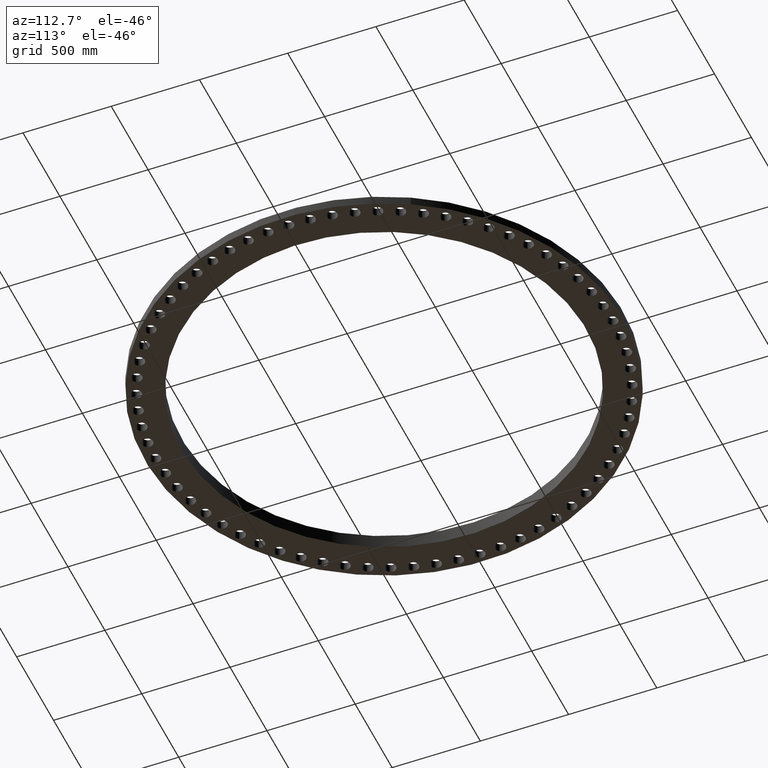
[diagram: clean part render]
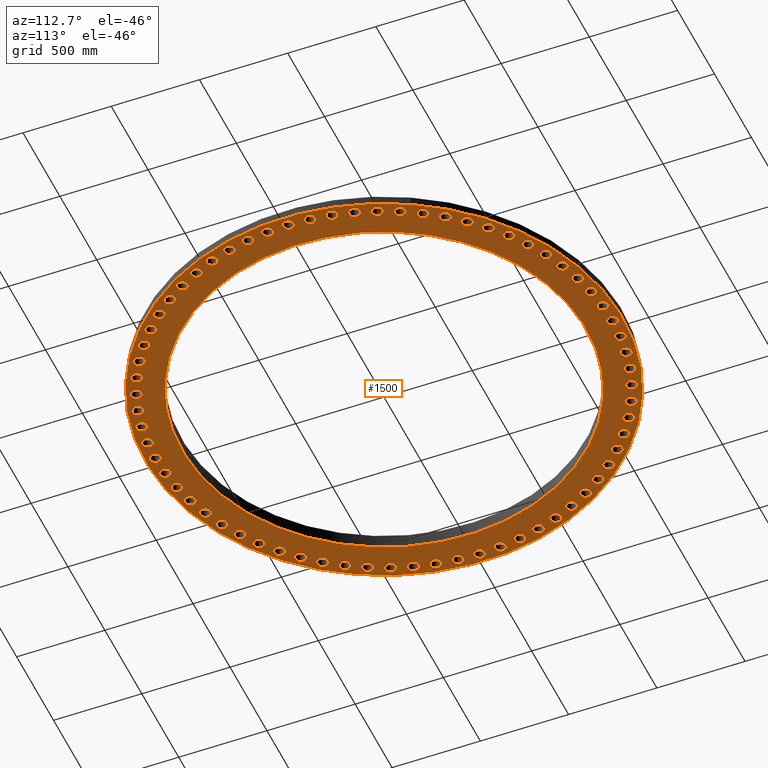
[diagram: same view with one face highlighted and labeled with its STEP entity id]
A machine part, auxiliary view. The second image highlights one B-rep face of the part: STEP entity #1500.
In plain terms, the highlighted planar face has unit normal (0, 0, 1).
Its self-contained STEP definition (entity closure, byte-faithful):
#51=AXIS2_PLACEMENT_3D('Circle Axis2P3D',#49,#50,$) ;
#77=AXIS2_PLACEMENT_3D('Circle Axis2P3D',#75,#76,$) ;
#122=AXIS2_PLACEMENT_3D('Circle Axis2P3D',#120,#121,$) ;
#139=AXIS2_PLACEMENT_3D('Circle Axis2P3D',#137,#138,$) ;
#165=AXIS2_PLACEMENT_3D('Circle Axis2P3D',#163,#164,$) ;
#191=AXIS2_PLACEMENT_3D('Circle Axis2P3D',#189,#190,$) ;
#280=AXIS2_PLACEMENT_3D('Plane Axis2P3D',#277,#278,#279) ;
#296=AXIS2_PLACEMENT_3D('Circle Axis2P3D',#294,#295,$) ;
#305=AXIS2_PLACEMENT_3D('Circle Axis2P3D',#303,#304,$) ;
#314=AXIS2_PLACEMENT_3D('Circle Axis2P3D',#312,#313,$) ;
#323=AXIS2_PLACEMENT_3D('Circle Axis2P3D',#321,#322,$) ;
#332=AXIS2_PLACEMENT_3D('Circle Axis2P3D',#330,#331,$) ;
#341=AXIS2_PLACEMENT_3D('Circle Axis2P3D',#339,#340,$) ;
#350=AXIS2_PLACEMENT_3D('Circle Axis2P3D',#348,#349,$) ;
#359=AXIS2_PLACEMENT_3D('Circle Axis2P3D',#357,#358,$) ;
#368=AXIS2_PLACEMENT_3D('Circle Axis2P3D',#366,#367,$) ;
#377=AXIS2_PLACEMENT_3D('Circle Axis2P3D',#375,#376,$) ;
#386=AXIS2_PLACEMENT_3D('Circle Axis2P3D',#384,#385,$) ;
#395=AXIS2_PLACEMENT_3D('Circle Axis2P3D',#393,#394,$) ;
#404=AXIS2_PLACEMENT_3D('Circle Axis2P3D',#402,#403,$) ;
#413=AXIS2_PLACEMENT_3D('Circle Axis2P3D',#411,#412,$) ;
#422=AXIS2_PLACEMENT_3D('Circle Axis2P3D',#420,#421,$) ;
#431=AXIS2_PLACEMENT_3D('Circle Axis2P3D',#429,#430,$) ;
#440=AXIS2_PLACEMENT_3D('Circle Axis2P3D',#438,#439,$) ;
#449=AXIS2_PLACEMENT_3D('Circle Axis2P3D',#447,#448,$) ;
#458=AXIS2_PLACEMENT_3D('Circle Axis2P3D',#456,#457,$) ;
#467=AXIS2_PLACEMENT_3D('Circle Axis2P3D',#465,#466,$) ;
#476=AXIS2_PLACEMENT_3D('Circle Axis2P3D',#474,#475,$) ;
#485=AXIS2_PLACEMENT_3D('Circle Axis2P3D',#483,#484,$) ;
#494=AXIS2_PLACEMENT_3D('Circle Axis2P3D',#492,#493,$) ;
#503=AXIS2_PLACEMENT_3D('Circle Axis2P3D',#501,#502,$) ;
#512=AXIS2_PLACEMENT_3D('Circle Axis2P3D',#510,#511,$) ;
#521=AXIS2_PLACEMENT_3D('Circle Axis2P3D',#519,#520,$) ;
#530=AXIS2_PLACEMENT_3D('Circle Axis2P3D',#528,#529,$) ;
#539=AXIS2_PLACEMENT_3D('Circle Axis2P3D',#537,#538,$) ;
#548=AXIS2_PLACEMENT_3D('Circle Axis2P3D',#546,#547,$) ;
#557=AXIS2_PLACEMENT_3D('Circle Axis2P3D',#555,#556,$) ;
#566=AXIS2_PLACEMENT_3D('Circle Axis2P3D',#564,#565,$) ;
#575=AXIS2_PLACEMENT_3D('Circle Axis2P3D',#573,#574,$) ;
#584=AXIS2_PLACEMENT_3D('Circle Axis2P3D',#582,#583,$) ;
#593=AXIS2_PLACEMENT_3D('Circle Axis2P3D',#591,#592,$) ;
#602=AXIS2_PLACEMENT_3D('Circle Axis2P3D',#600,#601,$) ;
#611=AXIS2_PLACEMENT_3D('Circle Axis2P3D',#609,#610,$) ;
#620=AXIS2_PLACEMENT_3D('Circle Axis2P3D',#618,#619,$) ;
#629=AXIS2_PLACEMENT_3D('Circle Axis2P3D',#627,#628,$) ;
#638=AXIS2_PLACEMENT_3D('Circle Axis2P3D',#636,#637,$) ;
#647=AXIS2_PLACEMENT_3D('Circle Axis2P3D',#645,#646,$) ;
#656=AXIS2_PLACEMENT_3D('Circle Axis2P3D',#654,#655,$) ;
#665=AXIS2_PLACEMENT_3D('Circle Axis2P3D',#663,#664,$) ;
#674=AXIS2_PLACEMENT_3D('Circle Axis2P3D',#672,#673,$) ;
#683=AXIS2_PLACEMENT_3D('Circle Axis2P3D',#681,#682,$) ;
#692=AXIS2_PLACEMENT_3D('Circle Axis2P3D',#690,#691,$) ;
#701=AXIS2_PLACEMENT_3D('Circle Axis2P3D',#699,#700,$) ;
#710=AXIS2_PLACEMENT_3D('Circle Axis2P3D',#708,#709,$) ;
#719=AXIS2_PLACEMENT_3D('Circle Axis2P3D',#717,#718,$) ;
#728=AXIS2_PLACEMENT_3D('Circle Axis2P3D',#726,#727,$) ;
#737=AXIS2_PLACEMENT_3D('Circle Axis2P3D',#735,#736,$) ;
#746=AXIS2_PLACEMENT_3D('Circle Axis2P3D',#744,#745,$) ;
#755=AXIS2_PLACEMENT_3D('Circle Axis2P3D',#753,#754,$) ;
#764=AXIS2_PLACEMENT_3D('Circle Axis2P3D',#762,#763,$) ;
#773=AXIS2_PLACEMENT_3D('Circle Axis2P3D',#771,#772,$) ;
#782=AXIS2_PLACEMENT_3D('Circle Axis2P3D',#780,#781,$) ;
#791=AXIS2_PLACEMENT_3D('Circle Axis2P3D',#789,#790,$) ;
#800=AXIS2_PLACEMENT_3D('Circle Axis2P3D',#798,#799,$) ;
#809=AXIS2_PLACEMENT_3D('Circle Axis2P3D',#807,#808,$) ;
#818=AXIS2_PLACEMENT_3D('Circle Axis2P3D',#816,#817,$) ;
#827=AXIS2_PLACEMENT_3D('Circle Axis2P3D',#825,#826,$) ;
#836=AXIS2_PLACEMENT_3D('Circle Axis2P3D',#834,#835,$) ;
#845=AXIS2_PLACEMENT_3D('Circle Axis2P3D',#843,#844,$) ;
#854=AXIS2_PLACEMENT_3D('Circle Axis2P3D',#852,#853,$) ;
#863=AXIS2_PLACEMENT_3D('Circle Axis2P3D',#861,#862,$) ;
#872=AXIS2_PLACEMENT_3D('Circle Axis2P3D',#870,#871,$) ;
#881=AXIS2_PLACEMENT_3D('Circle Axis2P3D',#879,#880,$) ;
#890=AXIS2_PLACEMENT_3D('Circle Axis2P3D',#888,#889,$) ;
#899=AXIS2_PLACEMENT_3D('Circle Axis2P3D',#897,#898,$) ;
#908=AXIS2_PLACEMENT_3D('Circle Axis2P3D',#906,#907,$) ;
#917=AXIS2_PLACEMENT_3D('Circle Axis2P3D',#915,#916,$) ;
#926=AXIS2_PLACEMENT_3D('Circle Axis2P3D',#924,#925,$) ;
#935=AXIS2_PLACEMENT_3D('Circle Axis2P3D',#933,#934,$) ;
#944=AXIS2_PLACEMENT_3D('Circle Axis2P3D',#942,#943,$) ;
#953=AXIS2_PLACEMENT_3D('Circle Axis2P3D',#951,#952,$) ;
#962=AXIS2_PLACEMENT_3D('Circle Axis2P3D',#960,#961,$) ;
#971=AXIS2_PLACEMENT_3D('Circle Axis2P3D',#969,#970,$) ;
#980=AXIS2_PLACEMENT_3D('Circle Axis2P3D',#978,#979,$) ;
#989=AXIS2_PLACEMENT_3D('Circle Axis2P3D',#987,#988,$) ;
#998=AXIS2_PLACEMENT_3D('Circle Axis2P3D',#996,#997,$) ;
#1007=AXIS2_PLACEMENT_3D('Circle Axis2P3D',#1005,#1006,$) ;
#1016=AXIS2_PLACEMENT_3D('Circle Axis2P3D',#1014,#1015,$) ;
#1025=AXIS2_PLACEMENT_3D('Circle Axis2P3D',#1023,#1024,$) ;
#1034=AXIS2_PLACEMENT_3D('Circle Axis2P3D',#1032,#1033,$) ;
#1043=AXIS2_PLACEMENT_3D('Circle Axis2P3D',#1041,#1042,$) ;
#1052=AXIS2_PLACEMENT_3D('Circle Axis2P3D',#1050,#1051,$) ;
#1061=AXIS2_PLACEMENT_3D('Circle Axis2P3D',#1059,#1060,$) ;
#1070=AXIS2_PLACEMENT_3D('Circle Axis2P3D',#1068,#1069,$) ;
#1079=AXIS2_PLACEMENT_3D('Circle Axis2P3D',#1077,#1078,$) ;
#1088=AXIS2_PLACEMENT_3D('Circle Axis2P3D',#1086,#1087,$) ;
#1097=AXIS2_PLACEMENT_3D('Circle Axis2P3D',#1095,#1096,$) ;
#1106=AXIS2_PLACEMENT_3D('Circle Axis2P3D',#1104,#1105,$) ;
#1115=AXIS2_PLACEMENT_3D('Circle Axis2P3D',#1113,#1114,$) ;
#1124=AXIS2_PLACEMENT_3D('Circle Axis2P3D',#1122,#1123,$) ;
#1133=AXIS2_PLACEMENT_3D('Circle Axis2P3D',#1131,#1132,$) ;
#1142=AXIS2_PLACEMENT_3D('Circle Axis2P3D',#1140,#1141,$) ;
#1151=AXIS2_PLACEMENT_3D('Circle Axis2P3D',#1149,#1150,$) ;
#1160=AXIS2_PLACEMENT_3D('Circle Axis2P3D',#1158,#1159,$) ;
#1169=AXIS2_PLACEMENT_3D('Circle Axis2P3D',#1167,#1168,$) ;
#1178=AXIS2_PLACEMENT_3D('Circle Axis2P3D',#1176,#1177,$) ;
#1187=AXIS2_PLACEMENT_3D('Circle Axis2P3D',#1185,#1186,$) ;
#1196=AXIS2_PLACEMENT_3D('Circle Axis2P3D',#1194,#1195,$) ;
#1205=AXIS2_PLACEMENT_3D('Circle Axis2P3D',#1203,#1204,$) ;
#1214=AXIS2_PLACEMENT_3D('Circle Axis2P3D',#1212,#1213,$) ;
#1223=AXIS2_PLACEMENT_3D('Circle Axis2P3D',#1221,#1222,$) ;
#1232=AXIS2_PLACEMENT_3D('Circle Axis2P3D',#1230,#1231,$) ;
#1241=AXIS2_PLACEMENT_3D('Circle Axis2P3D',#1239,#1240,$) ;
#1250=AXIS2_PLACEMENT_3D('Circle Axis2P3D',#1248,#1249,$) ;
#1259=AXIS2_PLACEMENT_3D('Circle Axis2P3D',#1257,#1258,$) ;
#1268=AXIS2_PLACEMENT_3D('Circle Axis2P3D',#1266,#1267,$) ;
#1277=AXIS2_PLACEMENT_3D('Circle Axis2P3D',#1275,#1276,$) ;
#1286=AXIS2_PLACEMENT_3D('Circle Axis2P3D',#1284,#1285,$) ;
#1295=AXIS2_PLACEMENT_3D('Circle Axis2P3D',#1293,#1294,$) ;
#1304=AXIS2_PLACEMENT_3D('Circle Axis2P3D',#1302,#1303,$) ;
#1313=AXIS2_PLACEMENT_3D('Circle Axis2P3D',#1311,#1312,$) ;
#1322=AXIS2_PLACEMENT_3D('Circle Axis2P3D',#1320,#1321,$) ;
#1331=AXIS2_PLACEMENT_3D('Circle Axis2P3D',#1329,#1330,$) ;
#1340=AXIS2_PLACEMENT_3D('Circle Axis2P3D',#1338,#1339,$) ;
#1349=AXIS2_PLACEMENT_3D('Circle Axis2P3D',#1347,#1348,$) ;
#1358=AXIS2_PLACEMENT_3D('Circle Axis2P3D',#1356,#1357,$) ;
#1367=AXIS2_PLACEMENT_3D('Circle Axis2P3D',#1365,#1366,$) ;
#1376=AXIS2_PLACEMENT_3D('Circle Axis2P3D',#1374,#1375,$) ;
#1385=AXIS2_PLACEMENT_3D('Circle Axis2P3D',#1383,#1384,$) ;
#1394=AXIS2_PLACEMENT_3D('Circle Axis2P3D',#1392,#1393,$) ;
#1403=AXIS2_PLACEMENT_3D('Circle Axis2P3D',#1401,#1402,$) ;
#1412=AXIS2_PLACEMENT_3D('Circle Axis2P3D',#1410,#1411,$) ;
#1421=AXIS2_PLACEMENT_3D('Circle Axis2P3D',#1419,#1420,$) ;
#1430=AXIS2_PLACEMENT_3D('Circle Axis2P3D',#1428,#1429,$) ;
#1439=AXIS2_PLACEMENT_3D('Circle Axis2P3D',#1437,#1438,$) ;
#1448=AXIS2_PLACEMENT_3D('Circle Axis2P3D',#1446,#1447,$) ;
#1457=AXIS2_PLACEMENT_3D('Circle Axis2P3D',#1455,#1456,$) ;
#1466=AXIS2_PLACEMENT_3D('Circle Axis2P3D',#1464,#1465,$) ;
#1475=AXIS2_PLACEMENT_3D('Circle Axis2P3D',#1473,#1474,$) ;
#1484=AXIS2_PLACEMENT_3D('Circle Axis2P3D',#1482,#1483,$) ;
#1493=AXIS2_PLACEMENT_3D('Circle Axis2P3D',#1491,#1492,$) ;
#44=CARTESIAN_POINT('Vertex',(49.9302268573,0.584419731561,0.)) ;
#49=CARTESIAN_POINT('Axis2P3D Location',(51.0000000002,0.,0.)) ;
#53=CARTESIAN_POINT('Vertex',(52.0697731432,-0.584419731561,0.)) ;
#75=CARTESIAN_POINT('Axis2P3D Location',(51.0000000002,0.,0.)) ;
#101=CARTESIAN_POINT('Vertex',(46.7312714208,25.5294099308,-2.79741234551E-016)) ;
#117=CARTESIAN_POINT('Vertex',(-46.7312714208,-25.5294099308,-2.79741234551E-016)) ;
#120=CARTESIAN_POINT('Axis2P3D Location',(0.,0.,0.)) ;
#137=CARTESIAN_POINT('Axis2P3D Location',(0.,0.,0.)) ;
#158=CARTESIAN_POINT('Vertex',(39.5745856286,-21.6196946634,0.)) ;
#163=CARTESIAN_POINT('Axis2P3D Location',(-6.64385432059E-016,-2.09805925913E-016,0.)) ;
#167=CARTESIAN_POINT('Vertex',(-39.5745856286,21.6196946634,0.)) ;
#189=CARTESIAN_POINT('Axis2P3D Location',(-6.64385432059E-016,-2.09805925913E-016,0.)) ;
#277=CARTESIAN_POINT('Axis2P3D Location',(0.,0.,0.)) ;
#294=CARTESIAN_POINT('Axis2P3D Location',(50.7824429912,4.70568633265,0.)) ;
#298=CARTESIAN_POINT('Vertex',(49.6633098621,5.18890681977,0.)) ;
#300=CARTESIAN_POINT('Vertex',(51.9015761204,4.22246584553,0.)) ;
#303=CARTESIAN_POINT('Axis2P3D Location',(50.7824429912,4.70568633265,0.)) ;
#312=CARTESIAN_POINT('Axis2P3D Location',(50.1316280841,9.37122540868,0.)) ;
#316=CARTESIAN_POINT('Vertex',(48.9726830179,9.74912398454,0.)) ;
#318=CARTESIAN_POINT('Vertex',(51.2905731502,8.99332683282,0.)) ;
#321=CARTESIAN_POINT('Axis2P3D Location',(50.1316280841,9.37122540868,0.)) ;
#330=CARTESIAN_POINT('Axis2P3D Location',(49.053107802,13.9568124937,0.)) ;
#334=CARTESIAN_POINT('Vertex',(47.8642385095,14.2261650609,0.)) ;
#336=CARTESIAN_POINT('Vertex',(50.2419770945,13.6874599265,0.)) ;
#339=CARTESIAN_POINT('Axis2P3D Location',(49.053107802,13.9568124937,0.)) ;
#348=CARTESIAN_POINT('Axis2P3D Location',(47.5560836998,18.4233249756,0.)) ;
#352=CARTESIAN_POINT('Vertex',(46.3474331947,18.581833513,0.)) ;
#354=CARTESIAN_POINT('Vertex',(48.764734205,18.2648164382,0.)) ;
#357=CARTESIAN_POINT('Axis2P3D Location',(47.5560836998,18.4233249756,0.)) ;
#366=CARTESIAN_POINT('Axis2P3D Location',(45.6533278593,22.7326561447,0.)) ;
#370=CARTESIAN_POINT('Vertex',(44.4352079214,22.7789683133,0.)) ;
#372=CARTESIAN_POINT('Vertex',(46.8714477972,22.686343976,0.)) ;
#375=CARTESIAN_POINT('Axis2P3D Location',(45.6533278593,22.7326561447,0.)) ;
#384=CARTESIAN_POINT('Axis2P3D Location',(43.3610739224,26.8480403069,0.)) ;
#388=CARTESIAN_POINT('Vertex',(42.1438771216,26.7817609877,0.)) ;
#390=CARTESIAN_POINT('Vertex',(44.5782707232,26.9143196261,0.)) ;
#393=CARTESIAN_POINT('Axis2P3D Location',(43.3610739224,26.8480403069,0.)) ;
#402=CARTESIAN_POINT('Axis2P3D Location',(40.6988785915,30.7343664555,0.)) ;
#406=CARTESIAN_POINT('Vertex',(39.4929896217,30.5560611202,0.)) ;
#408=CARTESIAN_POINT('Vertex',(41.9047675612,30.9126717907,0.)) ;
#411=CARTESIAN_POINT('Axis2P3D Location',(40.6988785915,30.7343664555,0.)) ;
#420=CARTESIAN_POINT('Axis2P3D Location',(37.6894547784,34.3584778261,0.)) ;
#424=CARTESIAN_POINT('Vertex',(36.5051618591,34.069667713,0.)) ;
#426=CARTESIAN_POINT('Vertex',(38.8737476977,34.6472879392,0.)) ;
#429=CARTESIAN_POINT('Axis2P3D Location',(37.6894547784,34.3584778261,0.)) ;
#438=CARTESIAN_POINT('Axis2P3D Location',(34.3584778261,37.6894547784,0.)) ;
#442=CARTESIAN_POINT('Vertex',(33.205884927,37.2926039136,0.)) ;
#444=CARTESIAN_POINT('Vertex',(35.5110707252,38.0863056432,0.)) ;
#447=CARTESIAN_POINT('Axis2P3D Location',(34.3584778261,37.6894547784,0.)) ;
#456=CARTESIAN_POINT('Axis2P3D Location',(30.7343664555,40.6988785915,0.)) ;
#460=CARTESIAN_POINT('Vertex',(29.6233070927,40.1973727665,0.)) ;
#462=CARTESIAN_POINT('Vertex',(31.8454258182,41.2003844164,0.)) ;
#465=CARTESIAN_POINT('Axis2P3D Location',(30.7343664555,40.6988785915,0.)) ;
#474=CARTESIAN_POINT('Axis2P3D Location',(26.8480403069,43.3610739224,0.)) ;
#478=CARTESIAN_POINT('Vertex',(25.7879936472,42.7591918082,0.)) ;
#480=CARTESIAN_POINT('Vertex',(27.9080869665,43.9629560365,0.)) ;
#483=CARTESIAN_POINT('Axis2P3D Location',(26.8480403069,43.3610739224,0.)) ;
#492=CARTESIAN_POINT('Axis2P3D Location',(22.7326561447,45.6533278593,0.)) ;
#496=CARTESIAN_POINT('Vertex',(21.7326661325,44.9562045019,0.)) ;
#498=CARTESIAN_POINT('Vertex',(23.7326461569,46.3504512167,0.)) ;
#501=CARTESIAN_POINT('Axis2P3D Location',(22.7326561447,45.6533278593,0.)) ;
#510=CARTESIAN_POINT('Axis2P3D Location',(18.4233249756,47.5560836998,0.)) ;
#514=CARTESIAN_POINT('Vertex',(17.491923173,46.7696667098,0.)) ;
#516=CARTESIAN_POINT('Vertex',(19.3547267782,48.3425006898,0.)) ;
#519=CARTESIAN_POINT('Axis2P3D Location',(18.4233249756,47.5560836998,0.)) ;
#528=CARTESIAN_POINT('Axis2P3D Location',(13.9568124937,49.053107802,0.)) ;
#532=CARTESIAN_POINT('Vertex',(13.1019452925,48.1841066119,0.)) ;
#534=CARTESIAN_POINT('Vertex',(14.8116796949,49.9221089921,0.)) ;
#537=CARTESIAN_POINT('Axis2P3D Location',(13.9568124937,49.053107802,0.)) ;
#546=CARTESIAN_POINT('Axis2P3D Location',(9.37122540868,50.1316280841,0.)) ;
#550=CARTESIAN_POINT('Vertex',(8.60018623444,49.1874567057,0.)) ;
#552=CARTESIAN_POINT('Vertex',(10.1422645829,51.0757994625,0.)) ;
#555=CARTESIAN_POINT('Axis2P3D Location',(9.37122540868,50.1316280841,0.)) ;
#564=CARTESIAN_POINT('Axis2P3D Location',(4.70568633265,50.7824429912,0.)) ;
#568=CARTESIAN_POINT('Vertex',(4.02505341973,49.7711567618,0.)) ;
#570=CARTESIAN_POINT('Vertex',(5.38631924556,51.7937292207,0.)) ;
#573=CARTESIAN_POINT('Axis2P3D Location',(4.70568633265,50.7824429912,0.)) ;
#582=CARTESIAN_POINT('Axis2P3D Location',(-3.35689481461E-015,51.0000000002,0.)) ;
#586=CARTESIAN_POINT('Vertex',(-0.584419731561,49.9302268573,0.)) ;
#588=CARTESIAN_POINT('Vertex',(0.584419731561,52.0697731432,0.)) ;
#591=CARTESIAN_POINT('Axis2P3D Location',(-8.53210765381E-015,51.0000000002,0.)) ;
#600=CARTESIAN_POINT('Axis2P3D Location',(-4.70568633265,50.7824429912,0.)) ;
#604=CARTESIAN_POINT('Vertex',(-5.18890681977,49.6633098621,0.)) ;
#606=CARTESIAN_POINT('Vertex',(-4.22246584553,51.9015761204,0.)) ;
#609=CARTESIAN_POINT('Axis2P3D Location',(-4.70568633265,50.7824429912,0.)) ;
#618=CARTESIAN_POINT('Axis2P3D Location',(-9.37122540868,50.1316280841,0.)) ;
#622=CARTESIAN_POINT('Vertex',(-9.74912398454,48.9726830179,0.)) ;
#624=CARTESIAN_POINT('Vertex',(-8.99332683282,51.2905731502,0.)) ;
#627=CARTESIAN_POINT('Axis2P3D Location',(-9.37122540868,50.1316280841,0.)) ;
#636=CARTESIAN_POINT('Axis2P3D Location',(-13.9568124937,49.053107802,0.)) ;
#640=CARTESIAN_POINT('Vertex',(-14.2261650609,47.8642385095,0.)) ;
#642=CARTESIAN_POINT('Vertex',(-13.6874599265,50.2419770945,0.)) ;
#645=CARTESIAN_POINT('Axis2P3D Location',(-13.9568124937,49.053107802,0.)) ;
#654=CARTESIAN_POINT('Axis2P3D Location',(-18.4233249756,47.5560836998,0.)) ;
#658=CARTESIAN_POINT('Vertex',(-18.581833513,46.3474331947,0.)) ;
#660=CARTESIAN_POINT('Vertex',(-18.2648164382,48.764734205,0.)) ;
#663=CARTESIAN_POINT('Axis2P3D Location',(-18.4233249756,47.5560836998,0.)) ;
#672=CARTESIAN_POINT('Axis2P3D Location',(-22.7326561447,45.6533278593,0.)) ;
#676=CARTESIAN_POINT('Vertex',(-22.7789683133,44.4352079214,0.)) ;
#678=CARTESIAN_POINT('Vertex',(-22.686343976,46.8714477972,0.)) ;
#681=CARTESIAN_POINT('Axis2P3D Location',(-22.7326561447,45.6533278593,0.)) ;
#690=CARTESIAN_POINT('Axis2P3D Location',(-26.8480403069,43.3610739224,0.)) ;
#694=CARTESIAN_POINT('Vertex',(-26.7817609877,42.1438771216,0.)) ;
#696=CARTESIAN_POINT('Vertex',(-26.9143196261,44.5782707232,0.)) ;
#699=CARTESIAN_POINT('Axis2P3D Location',(-26.8480403069,43.3610739224,0.)) ;
#708=CARTESIAN_POINT('Axis2P3D Location',(-30.7343664555,40.6988785915,0.)) ;
#712=CARTESIAN_POINT('Vertex',(-30.5560611202,39.4929896217,0.)) ;
#714=CARTESIAN_POINT('Vertex',(-30.9126717907,41.9047675612,0.)) ;
#717=CARTESIAN_POINT('Axis2P3D Location',(-30.7343664555,40.6988785915,0.)) ;
#726=CARTESIAN_POINT('Axis2P3D Location',(-34.3584778261,37.6894547784,0.)) ;
#730=CARTESIAN_POINT('Vertex',(-34.069667713,36.5051618591,0.)) ;
#732=CARTESIAN_POINT('Vertex',(-34.6472879392,38.8737476977,0.)) ;
#735=CARTESIAN_POINT('Axis2P3D Location',(-34.3584778261,37.6894547784,0.)) ;
#744=CARTESIAN_POINT('Axis2P3D Location',(-37.6894547784,34.3584778261,0.)) ;
#748=CARTESIAN_POINT('Vertex',(-37.2926039136,33.205884927,0.)) ;
#750=CARTESIAN_POINT('Vertex',(-38.0863056432,35.5110707252,0.)) ;
#753=CARTESIAN_POINT('Axis2P3D Location',(-37.6894547784,34.3584778261,0.)) ;
#762=CARTESIAN_POINT('Axis2P3D Location',(-40.6988785915,30.7343664555,0.)) ;
#766=CARTESIAN_POINT('Vertex',(-40.1973727665,29.6233070927,0.)) ;
#768=CARTESIAN_POINT('Vertex',(-41.2003844164,31.8454258182,0.)) ;
#771=CARTESIAN_POINT('Axis2P3D Location',(-40.6988785915,30.7343664555,0.)) ;
#780=CARTESIAN_POINT('Axis2P3D Location',(-43.3610739224,26.8480403069,0.)) ;
#784=CARTESIAN_POINT('Vertex',(-42.7591918082,25.7879936472,0.)) ;
#786=CARTESIAN_POINT('Vertex',(-43.9629560365,27.9080869665,0.)) ;
#789=CARTESIAN_POINT('Axis2P3D Location',(-43.3610739224,26.8480403069,0.)) ;
#798=CARTESIAN_POINT('Axis2P3D Location',(-45.6533278593,22.7326561447,0.)) ;
#802=CARTESIAN_POINT('Vertex',(-44.9562045019,21.7326661325,0.)) ;
#804=CARTESIAN_POINT('Vertex',(-46.3504512167,23.7326461569,0.)) ;
#807=CARTESIAN_POINT('Axis2P3D Location',(-45.6533278593,22.7326561447,0.)) ;
#816=CARTESIAN_POINT('Axis2P3D Location',(-47.5560836998,18.4233249756,0.)) ;
#820=CARTESIAN_POINT('Vertex',(-46.7696667098,17.491923173,0.)) ;
#822=CARTESIAN_POINT('Vertex',(-48.3425006898,19.3547267782,0.)) ;
#825=CARTESIAN_POINT('Axis2P3D Location',(-47.5560836998,18.4233249756,0.)) ;
#834=CARTESIAN_POINT('Axis2P3D Location',(-49.053107802,13.9568124937,0.)) ;
#838=CARTESIAN_POINT('Vertex',(-48.1841066119,13.1019452925,0.)) ;
#840=CARTESIAN_POINT('Vertex',(-49.9221089921,14.8116796949,0.)) ;
#843=CARTESIAN_POINT('Axis2P3D Location',(-49.053107802,13.9568124937,0.)) ;
#852=CARTESIAN_POINT('Axis2P3D Location',(-50.1316280841,9.37122540868,0.)) ;
#856=CARTESIAN_POINT('Vertex',(-49.1874567057,8.60018623444,0.)) ;
#858=CARTESIAN_POINT('Vertex',(-51.0757994625,10.1422645829,0.)) ;
#861=CARTESIAN_POINT('Axis2P3D Location',(-50.1316280841,9.37122540868,0.)) ;
#870=CARTESIAN_POINT('Axis2P3D Location',(-50.7824429912,4.70568633265,0.)) ;
#874=CARTESIAN_POINT('Vertex',(-49.7711567618,4.02505341973,0.)) ;
#876=CARTESIAN_POINT('Vertex',(-51.7937292207,5.38631924556,0.)) ;
#879=CARTESIAN_POINT('Axis2P3D Location',(-50.7824429912,4.70568633265,0.)) ;
#888=CARTESIAN_POINT('Axis2P3D Location',(-51.0000000002,7.27327209833E-015,0.)) ;
#892=CARTESIAN_POINT('Vertex',(-49.9302268573,-0.584419731561,0.)) ;
#894=CARTESIAN_POINT('Vertex',(-52.0697731432,0.584419731561,0.)) ;
#897=CARTESIAN_POINT('Axis2P3D Location',(-51.0000000002,4.19611851827E-015,0.)) ;
#906=CARTESIAN_POINT('Axis2P3D Location',(-50.7824429912,-4.70568633265,0.)) ;
#910=CARTESIAN_POINT('Vertex',(-49.6633098621,-5.18890681977,0.)) ;
#912=CARTESIAN_POINT('Vertex',(-51.9015761204,-4.22246584553,0.)) ;
#915=CARTESIAN_POINT('Axis2P3D Location',(-50.7824429912,-4.70568633265,0.)) ;
#924=CARTESIAN_POINT('Axis2P3D Location',(-50.1316280841,-9.37122540868,0.)) ;
#928=CARTESIAN_POINT('Vertex',(-48.9726830179,-9.74912398454,0.)) ;
#930=CARTESIAN_POINT('Vertex',(-51.2905731502,-8.99332683282,0.)) ;
#933=CARTESIAN_POINT('Axis2P3D Location',(-50.1316280841,-9.37122540868,0.)) ;
#942=CARTESIAN_POINT('Axis2P3D Location',(-49.053107802,-13.9568124937,0.)) ;
#946=CARTESIAN_POINT('Vertex',(-47.8642385095,-14.2261650609,0.)) ;
#948=CARTESIAN_POINT('Vertex',(-50.2419770945,-13.6874599265,0.)) ;
#951=CARTESIAN_POINT('Axis2P3D Location',(-49.053107802,-13.9568124937,0.)) ;
#960=CARTESIAN_POINT('Axis2P3D Location',(-47.5560836998,-18.4233249756,0.)) ;
#964=CARTESIAN_POINT('Vertex',(-46.3474331947,-18.581833513,0.)) ;
#966=CARTESIAN_POINT('Vertex',(-48.764734205,-18.2648164382,0.)) ;
#969=CARTESIAN_POINT('Axis2P3D Location',(-47.5560836998,-18.4233249756,0.)) ;
#978=CARTESIAN_POINT('Axis2P3D Location',(-45.6533278593,-22.7326561447,0.)) ;
#982=CARTESIAN_POINT('Vertex',(-44.4352079214,-22.7789683133,0.)) ;
#984=CARTESIAN_POINT('Vertex',(-46.8714477972,-22.686343976,0.)) ;
#987=CARTESIAN_POINT('Axis2P3D Location',(-45.6533278593,-22.7326561447,0.)) ;
#996=CARTESIAN_POINT('Axis2P3D Location',(-43.3610739224,-26.8480403069,0.)) ;
#1000=CARTESIAN_POINT('Vertex',(-42.1438771216,-26.7817609877,0.)) ;
#1002=CARTESIAN_POINT('Vertex',(-44.5782707232,-26.9143196261,0.)) ;
#1005=CARTESIAN_POINT('Axis2P3D Location',(-43.3610739224,-26.8480403069,0.)) ;
#1014=CARTESIAN_POINT('Axis2P3D Location',(-40.6988785915,-30.7343664555,0.)) ;
#1018=CARTESIAN_POINT('Vertex',(-39.4929896217,-30.5560611202,0.)) ;
#1020=CARTESIAN_POINT('Vertex',(-41.9047675612,-30.9126717907,0.)) ;
#1023=CARTESIAN_POINT('Axis2P3D Location',(-40.6988785915,-30.7343664555,0.)) ;
#1032=CARTESIAN_POINT('Axis2P3D Location',(-37.6894547784,-34.3584778261,0.)) ;
#1036=CARTESIAN_POINT('Vertex',(-36.5051618591,-34.069667713,0.)) ;
#1038=CARTESIAN_POINT('Vertex',(-38.8737476977,-34.6472879392,0.)) ;
#1041=CARTESIAN_POINT('Axis2P3D Location',(-37.6894547784,-34.3584778261,0.)) ;
#1050=CARTESIAN_POINT('Axis2P3D Location',(-34.3584778261,-37.6894547784,0.)) ;
#1054=CARTESIAN_POINT('Vertex',(-33.205884927,-37.2926039136,0.)) ;
#1056=CARTESIAN_POINT('Vertex',(-35.5110707252,-38.0863056432,0.)) ;
#1059=CARTESIAN_POINT('Axis2P3D Location',(-34.3584778261,-37.6894547784,0.)) ;
#1068=CARTESIAN_POINT('Axis2P3D Location',(-30.7343664555,-40.6988785915,0.)) ;
#1072=CARTESIAN_POINT('Vertex',(-29.6233070927,-40.1973727665,0.)) ;
#1074=CARTESIAN_POINT('Vertex',(-31.8454258182,-41.2003844164,0.)) ;
#1077=CARTESIAN_POINT('Axis2P3D Location',(-30.7343664555,-40.6988785915,0.)) ;
#1086=CARTESIAN_POINT('Axis2P3D Location',(-26.8480403069,-43.3610739224,0.)) ;
#1090=CARTESIAN_POINT('Vertex',(-25.7879936472,-42.7591918082,0.)) ;
#1092=CARTESIAN_POINT('Vertex',(-27.9080869665,-43.9629560365,0.)) ;
#1095=CARTESIAN_POINT('Axis2P3D Location',(-26.8480403069,-43.3610739224,0.)) ;
#1104=CARTESIAN_POINT('Axis2P3D Location',(-22.7326561447,-45.6533278593,0.)) ;
#1108=CARTESIAN_POINT('Vertex',(-21.7326661325,-44.9562045019,0.)) ;
#1110=CARTESIAN_POINT('Vertex',(-23.7326461569,-46.3504512167,0.)) ;
#1113=CARTESIAN_POINT('Axis2P3D Location',(-22.7326561447,-45.6533278593,0.)) ;
#1122=CARTESIAN_POINT('Axis2P3D Location',(-18.4233249756,-47.5560836998,0.)) ;
#1126=CARTESIAN_POINT('Vertex',(-17.491923173,-46.7696667098,0.)) ;
#1128=CARTESIAN_POINT('Vertex',(-19.3547267782,-48.3425006898,0.)) ;
#1131=CARTESIAN_POINT('Axis2P3D Location',(-18.4233249756,-47.5560836998,0.)) ;
#1140=CARTESIAN_POINT('Axis2P3D Location',(-13.9568124937,-49.053107802,0.)) ;
#1144=CARTESIAN_POINT('Vertex',(-13.1019452925,-48.1841066119,0.)) ;
#1146=CARTESIAN_POINT('Vertex',(-14.8116796949,-49.9221089921,0.)) ;
#1149=CARTESIAN_POINT('Axis2P3D Location',(-13.9568124937,-49.053107802,0.)) ;
#1158=CARTESIAN_POINT('Axis2P3D Location',(-9.37122540868,-50.1316280841,0.)) ;
#1162=CARTESIAN_POINT('Vertex',(-8.60018623444,-49.1874567057,0.)) ;
#1164=CARTESIAN_POINT('Vertex',(-10.1422645829,-51.0757994625,0.)) ;
#1167=CARTESIAN_POINT('Axis2P3D Location',(-9.37122540868,-50.1316280841,0.)) ;
#1176=CARTESIAN_POINT('Axis2P3D Location',(-4.70568633265,-50.7824429912,0.)) ;
#1180=CARTESIAN_POINT('Vertex',(-4.02505341973,-49.7711567618,0.)) ;
#1182=CARTESIAN_POINT('Vertex',(-5.38631924556,-51.7937292207,0.)) ;
#1185=CARTESIAN_POINT('Axis2P3D Location',(-4.70568633265,-50.7824429912,0.)) ;
#1194=CARTESIAN_POINT('Axis2P3D Location',(-8.53210765381E-015,-51.0000000002,0.)) ;
#1198=CARTESIAN_POINT('Vertex',(0.584419731561,-49.9302268573,0.)) ;
#1200=CARTESIAN_POINT('Vertex',(-0.584419731561,-52.0697731432,0.)) ;
#1203=CARTESIAN_POINT('Axis2P3D Location',(-9.65107259202E-015,-51.0000000002,0.)) ;
#1212=CARTESIAN_POINT('Axis2P3D Location',(4.70568633265,-50.7824429912,0.)) ;
#1216=CARTESIAN_POINT('Vertex',(5.18890681977,-49.6633098621,0.)) ;
#1218=CARTESIAN_POINT('Vertex',(4.22246584553,-51.9015761204,0.)) ;
#1221=CARTESIAN_POINT('Axis2P3D Location',(4.70568633265,-50.7824429912,0.)) ;
#1230=CARTESIAN_POINT('Axis2P3D Location',(9.37122540868,-50.1316280841,0.)) ;
#1234=CARTESIAN_POINT('Vertex',(9.74912398454,-48.9726830179,0.)) ;
#1236=CARTESIAN_POINT('Vertex',(8.99332683282,-51.2905731502,0.)) ;
#1239=CARTESIAN_POINT('Axis2P3D Location',(9.37122540868,-50.1316280841,0.)) ;
#1248=CARTESIAN_POINT('Axis2P3D Location',(13.9568124937,-49.053107802,0.)) ;
#1252=CARTESIAN_POINT('Vertex',(14.2261650609,-47.8642385095,0.)) ;
#1254=CARTESIAN_POINT('Vertex',(13.6874599265,-50.2419770945,0.)) ;
#1257=CARTESIAN_POINT('Axis2P3D Location',(13.9568124937,-49.053107802,0.)) ;
#1266=CARTESIAN_POINT('Axis2P3D Location',(18.4233249756,-47.5560836998,0.)) ;
#1270=CARTESIAN_POINT('Vertex',(18.581833513,-46.3474331947,0.)) ;
#1272=CARTESIAN_POINT('Vertex',(18.2648164382,-48.764734205,0.)) ;
#1275=CARTESIAN_POINT('Axis2P3D Location',(18.4233249756,-47.5560836998,0.)) ;
#1284=CARTESIAN_POINT('Axis2P3D Location',(22.7326561447,-45.6533278593,0.)) ;
#1288=CARTESIAN_POINT('Vertex',(22.7789683133,-44.4352079214,0.)) ;
#1290=CARTESIAN_POINT('Vertex',(22.686343976,-46.8714477972,0.)) ;
#1293=CARTESIAN_POINT('Axis2P3D Location',(22.7326561447,-45.6533278593,0.)) ;
#1302=CARTESIAN_POINT('Axis2P3D Location',(26.8480403069,-43.3610739224,0.)) ;
#1306=CARTESIAN_POINT('Vertex',(26.7817609877,-42.1438771216,0.)) ;
#1308=CARTESIAN_POINT('Vertex',(26.9143196261,-44.5782707232,0.)) ;
#1311=CARTESIAN_POINT('Axis2P3D Location',(26.8480403069,-43.3610739224,0.)) ;
#1320=CARTESIAN_POINT('Axis2P3D Location',(30.7343664555,-40.6988785915,0.)) ;
#1324=CARTESIAN_POINT('Vertex',(30.5560611202,-39.4929896217,0.)) ;
#1326=CARTESIAN_POINT('Vertex',(30.9126717907,-41.9047675612,0.)) ;
#1329=CARTESIAN_POINT('Axis2P3D Location',(30.7343664555,-40.6988785915,0.)) ;
#1338=CARTESIAN_POINT('Axis2P3D Location',(34.3584778261,-37.6894547784,0.)) ;
#1342=CARTESIAN_POINT('Vertex',(34.069667713,-36.5051618591,0.)) ;
#1344=CARTESIAN_POINT('Vertex',(34.6472879392,-38.8737476977,0.)) ;
#1347=CARTESIAN_POINT('Axis2P3D Location',(34.3584778261,-37.6894547784,0.)) ;
#1356=CARTESIAN_POINT('Axis2P3D Location',(37.6894547784,-34.3584778261,0.)) ;
#1360=CARTESIAN_POINT('Vertex',(37.2926039136,-33.205884927,0.)) ;
#1362=CARTESIAN_POINT('Vertex',(38.0863056432,-35.5110707252,0.)) ;
#1365=CARTESIAN_POINT('Axis2P3D Location',(37.6894547784,-34.3584778261,0.)) ;
#1374=CARTESIAN_POINT('Axis2P3D Location',(40.6988785915,-30.7343664555,0.)) ;
#1378=CARTESIAN_POINT('Vertex',(40.1973727665,-29.6233070927,0.)) ;
#1380=CARTESIAN_POINT('Vertex',(41.2003844164,-31.8454258182,0.)) ;
#1383=CARTESIAN_POINT('Axis2P3D Location',(40.6988785915,-30.7343664555,0.)) ;
#1392=CARTESIAN_POINT('Axis2P3D Location',(43.3610739224,-26.8480403069,0.)) ;
#1396=CARTESIAN_POINT('Vertex',(42.7591918082,-25.7879936472,0.)) ;
#1398=CARTESIAN_POINT('Vertex',(43.9629560365,-27.9080869665,0.)) ;
#1401=CARTESIAN_POINT('Axis2P3D Location',(43.3610739224,-26.8480403069,0.)) ;
#1410=CARTESIAN_POINT('Axis2P3D Location',(45.6533278593,-22.7326561447,0.)) ;
#1414=CARTESIAN_POINT('Vertex',(44.9562045019,-21.7326661325,0.)) ;
#1416=CARTESIAN_POINT('Vertex',(46.3504512167,-23.7326461569,0.)) ;
#1419=CARTESIAN_POINT('Axis2P3D Location',(45.6533278593,-22.7326561447,0.)) ;
#1428=CARTESIAN_POINT('Axis2P3D Location',(47.5560836998,-18.4233249756,0.)) ;
#1432=CARTESIAN_POINT('Vertex',(46.7696667098,-17.491923173,0.)) ;
#1434=CARTESIAN_POINT('Vertex',(48.3425006898,-19.3547267782,0.)) ;
#1437=CARTESIAN_POINT('Axis2P3D Location',(47.5560836998,-18.4233249756,0.)) ;
#1446=CARTESIAN_POINT('Axis2P3D Location',(49.053107802,-13.9568124937,0.)) ;
#1450=CARTESIAN_POINT('Vertex',(48.1841066119,-13.1019452925,0.)) ;
#1452=CARTESIAN_POINT('Vertex',(49.9221089921,-14.8116796949,0.)) ;
#1455=CARTESIAN_POINT('Axis2P3D Location',(49.053107802,-13.9568124937,0.)) ;
#1464=CARTESIAN_POINT('Axis2P3D Location',(50.1316280841,-9.37122540868,0.)) ;
#1468=CARTESIAN_POINT('Vertex',(49.1874567057,-8.60018623444,0.)) ;
#1470=CARTESIAN_POINT('Vertex',(51.0757994625,-10.1422645829,0.)) ;
#1473=CARTESIAN_POINT('Axis2P3D Location',(50.1316280841,-9.37122540868,0.)) ;
#1482=CARTESIAN_POINT('Axis2P3D Location',(50.7824429912,-4.70568633265,0.)) ;
#1486=CARTESIAN_POINT('Vertex',(49.7711567618,-4.02505341973,0.)) ;
#1488=CARTESIAN_POINT('Vertex',(51.7937292207,-5.38631924556,0.)) ;
#1491=CARTESIAN_POINT('Axis2P3D Location',(50.7824429912,-4.70568633265,0.)) ;
#50=DIRECTION('Axis2P3D Direction',(0.,-0.,-0.0393700787402)) ;
#76=DIRECTION('Axis2P3D Direction',(0.,-0.,-0.0393700787402)) ;
#121=DIRECTION('Axis2P3D Direction',(0.,0.,0.0393700787402)) ;
#138=DIRECTION('Axis2P3D Direction',(0.,0.,0.0393700787402)) ;
#164=DIRECTION('Axis2P3D Direction',(0.,-0.,-0.0393700787402)) ;
#190=DIRECTION('Axis2P3D Direction',(0.,-0.,-0.0393700787402)) ;
#278=DIRECTION('Axis2P3D Direction',(0.,0.,0.0393700787402)) ;
#279=DIRECTION('Axis2P3D XDirection',(0.0393700787402,0.,0.)) ;
#295=DIRECTION('Axis2P3D Direction',(0.,0.,0.0393700787402)) ;
#304=DIRECTION('Axis2P3D Direction',(0.,0.,0.0393700787402)) ;
#313=DIRECTION('Axis2P3D Direction',(0.,0.,0.0393700787402)) ;
#322=DIRECTION('Axis2P3D Direction',(0.,0.,0.0393700787402)) ;
#331=DIRECTION('Axis2P3D Direction',(0.,0.,0.0393700787402)) ;
#340=DIRECTION('Axis2P3D Direction',(0.,0.,0.0393700787402)) ;
#349=DIRECTION('Axis2P3D Direction',(0.,0.,0.0393700787402)) ;
#358=DIRECTION('Axis2P3D Direction',(0.,0.,0.0393700787402)) ;
#367=DIRECTION('Axis2P3D Direction',(0.,0.,0.0393700787402)) ;
#376=DIRECTION('Axis2P3D Direction',(0.,0.,0.0393700787402)) ;
#385=DIRECTION('Axis2P3D Direction',(0.,0.,0.0393700787402)) ;
#394=DIRECTION('Axis2P3D Direction',(0.,0.,0.0393700787402)) ;
#403=DIRECTION('Axis2P3D Direction',(0.,0.,0.0393700787402)) ;
#412=DIRECTION('Axis2P3D Direction',(0.,0.,0.0393700787402)) ;
#421=DIRECTION('Axis2P3D Direction',(0.,0.,0.0393700787402)) ;
#430=DIRECTION('Axis2P3D Direction',(0.,0.,0.0393700787402)) ;
#439=DIRECTION('Axis2P3D Direction',(0.,0.,0.0393700787402)) ;
#448=DIRECTION('Axis2P3D Direction',(0.,0.,0.0393700787402)) ;
#457=DIRECTION('Axis2P3D Direction',(0.,0.,0.0393700787402)) ;
#466=DIRECTION('Axis2P3D Direction',(0.,0.,0.0393700787402)) ;
#475=DIRECTION('Axis2P3D Direction',(0.,0.,0.0393700787402)) ;
#484=DIRECTION('Axis2P3D Direction',(0.,0.,0.0393700787402)) ;
#493=DIRECTION('Axis2P3D Direction',(0.,0.,0.0393700787402)) ;
#502=DIRECTION('Axis2P3D Direction',(0.,0.,0.0393700787402)) ;
#511=DIRECTION('Axis2P3D Direction',(0.,0.,0.0393700787402)) ;
#520=DIRECTION('Axis2P3D Direction',(0.,0.,0.0393700787402)) ;
#529=DIRECTION('Axis2P3D Direction',(0.,0.,0.0393700787402)) ;
#538=DIRECTION('Axis2P3D Direction',(0.,0.,0.0393700787402)) ;
#547=DIRECTION('Axis2P3D Direction',(0.,0.,0.0393700787402)) ;
#556=DIRECTION('Axis2P3D Direction',(0.,0.,0.0393700787402)) ;
#565=DIRECTION('Axis2P3D Direction',(0.,0.,0.0393700787402)) ;
#574=DIRECTION('Axis2P3D Direction',(0.,0.,0.0393700787402)) ;
#583=DIRECTION('Axis2P3D Direction',(0.,0.,0.0393700787402)) ;
#592=DIRECTION('Axis2P3D Direction',(0.,0.,0.0393700787402)) ;
#601=DIRECTION('Axis2P3D Direction',(0.,0.,0.0393700787402)) ;
#610=DIRECTION('Axis2P3D Direction',(0.,0.,0.0393700787402)) ;
#619=DIRECTION('Axis2P3D Direction',(0.,0.,0.0393700787402)) ;
#628=DIRECTION('Axis2P3D Direction',(0.,0.,0.0393700787402)) ;
#637=DIRECTION('Axis2P3D Direction',(0.,0.,0.0393700787402)) ;
#646=DIRECTION('Axis2P3D Direction',(0.,0.,0.0393700787402)) ;
#655=DIRECTION('Axis2P3D Direction',(0.,0.,0.0393700787402)) ;
#664=DIRECTION('Axis2P3D Direction',(0.,0.,0.0393700787402)) ;
#673=DIRECTION('Axis2P3D Direction',(0.,0.,0.0393700787402)) ;
#682=DIRECTION('Axis2P3D Direction',(0.,0.,0.0393700787402)) ;
#691=DIRECTION('Axis2P3D Direction',(0.,0.,0.0393700787402)) ;
#700=DIRECTION('Axis2P3D Direction',(0.,0.,0.0393700787402)) ;
#709=DIRECTION('Axis2P3D Direction',(0.,0.,0.0393700787402)) ;
#718=DIRECTION('Axis2P3D Direction',(0.,0.,0.0393700787402)) ;
#727=DIRECTION('Axis2P3D Direction',(0.,0.,0.0393700787402)) ;
#736=DIRECTION('Axis2P3D Direction',(0.,0.,0.0393700787402)) ;
#745=DIRECTION('Axis2P3D Direction',(0.,0.,0.0393700787402)) ;
#754=DIRECTION('Axis2P3D Direction',(0.,0.,0.0393700787402)) ;
#763=DIRECTION('Axis2P3D Direction',(0.,0.,0.0393700787402)) ;
#772=DIRECTION('Axis2P3D Direction',(0.,0.,0.0393700787402)) ;
#781=DIRECTION('Axis2P3D Direction',(0.,0.,0.0393700787402)) ;
#790=DIRECTION('Axis2P3D Direction',(0.,0.,0.0393700787402)) ;
#799=DIRECTION('Axis2P3D Direction',(0.,0.,0.0393700787402)) ;
#808=DIRECTION('Axis2P3D Direction',(0.,0.,0.0393700787402)) ;
#817=DIRECTION('Axis2P3D Direction',(0.,0.,0.0393700787402)) ;
#826=DIRECTION('Axis2P3D Direction',(0.,0.,0.0393700787402)) ;
#835=DIRECTION('Axis2P3D Direction',(0.,0.,0.0393700787402)) ;
#844=DIRECTION('Axis2P3D Direction',(0.,0.,0.0393700787402)) ;
#853=DIRECTION('Axis2P3D Direction',(0.,0.,0.0393700787402)) ;
#862=DIRECTION('Axis2P3D Direction',(0.,0.,0.0393700787402)) ;
#871=DIRECTION('Axis2P3D Direction',(0.,0.,0.0393700787402)) ;
#880=DIRECTION('Axis2P3D Direction',(0.,0.,0.0393700787402)) ;
#889=DIRECTION('Axis2P3D Direction',(0.,0.,0.0393700787402)) ;
#898=DIRECTION('Axis2P3D Direction',(0.,0.,0.0393700787402)) ;
#907=DIRECTION('Axis2P3D Direction',(0.,0.,0.0393700787402)) ;
#916=DIRECTION('Axis2P3D Direction',(0.,0.,0.0393700787402)) ;
#925=DIRECTION('Axis2P3D Direction',(0.,0.,0.0393700787402)) ;
#934=DIRECTION('Axis2P3D Direction',(0.,0.,0.0393700787402)) ;
#943=DIRECTION('Axis2P3D Direction',(0.,0.,0.0393700787402)) ;
#952=DIRECTION('Axis2P3D Direction',(0.,0.,0.0393700787402)) ;
#961=DIRECTION('Axis2P3D Direction',(0.,0.,0.0393700787402)) ;
#970=DIRECTION('Axis2P3D Direction',(0.,0.,0.0393700787402)) ;
#979=DIRECTION('Axis2P3D Direction',(0.,0.,0.0393700787402)) ;
#988=DIRECTION('Axis2P3D Direction',(0.,0.,0.0393700787402)) ;
#997=DIRECTION('Axis2P3D Direction',(0.,0.,0.0393700787402)) ;
#1006=DIRECTION('Axis2P3D Direction',(0.,0.,0.0393700787402)) ;
#1015=DIRECTION('Axis2P3D Direction',(0.,0.,0.0393700787402)) ;
#1024=DIRECTION('Axis2P3D Direction',(0.,0.,0.0393700787402)) ;
#1033=DIRECTION('Axis2P3D Direction',(0.,0.,0.0393700787402)) ;
#1042=DIRECTION('Axis2P3D Direction',(0.,0.,0.0393700787402)) ;
#1051=DIRECTION('Axis2P3D Direction',(0.,0.,0.0393700787402)) ;
#1060=DIRECTION('Axis2P3D Direction',(0.,0.,0.0393700787402)) ;
#1069=DIRECTION('Axis2P3D Direction',(0.,0.,0.0393700787402)) ;
#1078=DIRECTION('Axis2P3D Direction',(0.,0.,0.0393700787402)) ;
#1087=DIRECTION('Axis2P3D Direction',(0.,0.,0.0393700787402)) ;
#1096=DIRECTION('Axis2P3D Direction',(0.,0.,0.0393700787402)) ;
#1105=DIRECTION('Axis2P3D Direction',(0.,0.,0.0393700787402)) ;
#1114=DIRECTION('Axis2P3D Direction',(0.,0.,0.0393700787402)) ;
#1123=DIRECTION('Axis2P3D Direction',(0.,0.,0.0393700787402)) ;
#1132=DIRECTION('Axis2P3D Direction',(0.,0.,0.0393700787402)) ;
#1141=DIRECTION('Axis2P3D Direction',(0.,0.,0.0393700787402)) ;
#1150=DIRECTION('Axis2P3D Direction',(0.,0.,0.0393700787402)) ;
#1159=DIRECTION('Axis2P3D Direction',(0.,0.,0.0393700787402)) ;
#1168=DIRECTION('Axis2P3D Direction',(0.,0.,0.0393700787402)) ;
#1177=DIRECTION('Axis2P3D Direction',(0.,0.,0.0393700787402)) ;
#1186=DIRECTION('Axis2P3D Direction',(0.,0.,0.0393700787402)) ;
#1195=DIRECTION('Axis2P3D Direction',(0.,0.,0.0393700787402)) ;
#1204=DIRECTION('Axis2P3D Direction',(0.,0.,0.0393700787402)) ;
#1213=DIRECTION('Axis2P3D Direction',(0.,0.,0.0393700787402)) ;
#1222=DIRECTION('Axis2P3D Direction',(0.,0.,0.0393700787402)) ;
#1231=DIRECTION('Axis2P3D Direction',(0.,0.,0.0393700787402)) ;
#1240=DIRECTION('Axis2P3D Direction',(0.,0.,0.0393700787402)) ;
#1249=DIRECTION('Axis2P3D Direction',(0.,0.,0.0393700787402)) ;
#1258=DIRECTION('Axis2P3D Direction',(0.,0.,0.0393700787402)) ;
#1267=DIRECTION('Axis2P3D Direction',(0.,0.,0.0393700787402)) ;
#1276=DIRECTION('Axis2P3D Direction',(0.,0.,0.0393700787402)) ;
#1285=DIRECTION('Axis2P3D Direction',(0.,0.,0.0393700787402)) ;
#1294=DIRECTION('Axis2P3D Direction',(0.,0.,0.0393700787402)) ;
#1303=DIRECTION('Axis2P3D Direction',(0.,0.,0.0393700787402)) ;
#1312=DIRECTION('Axis2P3D Direction',(0.,0.,0.0393700787402)) ;
#1321=DIRECTION('Axis2P3D Direction',(0.,0.,0.0393700787402)) ;
#1330=DIRECTION('Axis2P3D Direction',(0.,0.,0.0393700787402)) ;
#1339=DIRECTION('Axis2P3D Direction',(0.,0.,0.0393700787402)) ;
#1348=DIRECTION('Axis2P3D Direction',(0.,0.,0.0393700787402)) ;
#1357=DIRECTION('Axis2P3D Direction',(0.,0.,0.0393700787402)) ;
#1366=DIRECTION('Axis2P3D Direction',(0.,0.,0.0393700787402)) ;
#1375=DIRECTION('Axis2P3D Direction',(0.,0.,0.0393700787402)) ;
#1384=DIRECTION('Axis2P3D Direction',(0.,0.,0.0393700787402)) ;
#1393=DIRECTION('Axis2P3D Direction',(0.,0.,0.0393700787402)) ;
#1402=DIRECTION('Axis2P3D Direction',(0.,0.,0.0393700787402)) ;
#1411=DIRECTION('Axis2P3D Direction',(0.,0.,0.0393700787402)) ;
#1420=DIRECTION('Axis2P3D Direction',(0.,0.,0.0393700787402)) ;
#1429=DIRECTION('Axis2P3D Direction',(0.,0.,0.0393700787402)) ;
#1438=DIRECTION('Axis2P3D Direction',(0.,0.,0.0393700787402)) ;
#1447=DIRECTION('Axis2P3D Direction',(0.,0.,0.0393700787402)) ;
#1456=DIRECTION('Axis2P3D Direction',(0.,0.,0.0393700787402)) ;
#1465=DIRECTION('Axis2P3D Direction',(0.,0.,0.0393700787402)) ;
#1474=DIRECTION('Axis2P3D Direction',(0.,0.,0.0393700787402)) ;
#1483=DIRECTION('Axis2P3D Direction',(0.,0.,0.0393700787402)) ;
#1492=DIRECTION('Axis2P3D Direction',(0.,0.,0.0393700787402)) ;
#283=ORIENTED_EDGE('',*,*,#124,.F.) ;
#284=ORIENTED_EDGE('',*,*,#141,.F.) ;
#287=ORIENTED_EDGE('',*,*,#55,.T.) ;
#288=ORIENTED_EDGE('',*,*,#79,.T.) ;
#291=ORIENTED_EDGE('',*,*,#193,.T.) ;
#292=ORIENTED_EDGE('',*,*,#169,.T.) ;
#309=ORIENTED_EDGE('',*,*,#302,.T.) ;
#310=ORIENTED_EDGE('',*,*,#307,.T.) ;
#327=ORIENTED_EDGE('',*,*,#320,.T.) ;
#328=ORIENTED_EDGE('',*,*,#325,.T.) ;
#345=ORIENTED_EDGE('',*,*,#338,.T.) ;
#346=ORIENTED_EDGE('',*,*,#343,.T.) ;
#363=ORIENTED_EDGE('',*,*,#356,.T.) ;
#364=ORIENTED_EDGE('',*,*,#361,.T.) ;
#381=ORIENTED_EDGE('',*,*,#374,.T.) ;
#382=ORIENTED_EDGE('',*,*,#379,.T.) ;
#399=ORIENTED_EDGE('',*,*,#392,.T.) ;
#400=ORIENTED_EDGE('',*,*,#397,.T.) ;
#417=ORIENTED_EDGE('',*,*,#410,.T.) ;
#418=ORIENTED_EDGE('',*,*,#415,.T.) ;
#435=ORIENTED_EDGE('',*,*,#428,.T.) ;
#436=ORIENTED_EDGE('',*,*,#433,.T.) ;
#453=ORIENTED_EDGE('',*,*,#446,.T.) ;
#454=ORIENTED_EDGE('',*,*,#451,.T.) ;
#471=ORIENTED_EDGE('',*,*,#464,.T.) ;
#472=ORIENTED_EDGE('',*,*,#469,.T.) ;
#489=ORIENTED_EDGE('',*,*,#482,.T.) ;
#490=ORIENTED_EDGE('',*,*,#487,.T.) ;
#507=ORIENTED_EDGE('',*,*,#500,.T.) ;
#508=ORIENTED_EDGE('',*,*,#505,.T.) ;
#525=ORIENTED_EDGE('',*,*,#518,.T.) ;
#526=ORIENTED_EDGE('',*,*,#523,.T.) ;
#543=ORIENTED_EDGE('',*,*,#536,.T.) ;
#544=ORIENTED_EDGE('',*,*,#541,.T.) ;
#561=ORIENTED_EDGE('',*,*,#554,.T.) ;
#562=ORIENTED_EDGE('',*,*,#559,.T.) ;
#579=ORIENTED_EDGE('',*,*,#572,.T.) ;
#580=ORIENTED_EDGE('',*,*,#577,.T.) ;
#597=ORIENTED_EDGE('',*,*,#590,.T.) ;
#598=ORIENTED_EDGE('',*,*,#595,.T.) ;
#615=ORIENTED_EDGE('',*,*,#608,.T.) ;
#616=ORIENTED_EDGE('',*,*,#613,.T.) ;
#633=ORIENTED_EDGE('',*,*,#626,.T.) ;
#634=ORIENTED_EDGE('',*,*,#631,.T.) ;
#651=ORIENTED_EDGE('',*,*,#644,.T.) ;
#652=ORIENTED_EDGE('',*,*,#649,.T.) ;
#669=ORIENTED_EDGE('',*,*,#662,.T.) ;
#670=ORIENTED_EDGE('',*,*,#667,.T.) ;
#687=ORIENTED_EDGE('',*,*,#680,.T.) ;
#688=ORIENTED_EDGE('',*,*,#685,.T.) ;
#705=ORIENTED_EDGE('',*,*,#698,.T.) ;
#706=ORIENTED_EDGE('',*,*,#703,.T.) ;
#723=ORIENTED_EDGE('',*,*,#716,.T.) ;
#724=ORIENTED_EDGE('',*,*,#721,.T.) ;
#741=ORIENTED_EDGE('',*,*,#734,.T.) ;
#742=ORIENTED_EDGE('',*,*,#739,.T.) ;
#759=ORIENTED_EDGE('',*,*,#752,.T.) ;
#760=ORIENTED_EDGE('',*,*,#757,.T.) ;
#777=ORIENTED_EDGE('',*,*,#770,.T.) ;
#778=ORIENTED_EDGE('',*,*,#775,.T.) ;
#795=ORIENTED_EDGE('',*,*,#788,.T.) ;
#796=ORIENTED_EDGE('',*,*,#793,.T.) ;
#813=ORIENTED_EDGE('',*,*,#806,.T.) ;
#814=ORIENTED_EDGE('',*,*,#811,.T.) ;
#831=ORIENTED_EDGE('',*,*,#824,.T.) ;
#832=ORIENTED_EDGE('',*,*,#829,.T.) ;
#849=ORIENTED_EDGE('',*,*,#842,.T.) ;
#850=ORIENTED_EDGE('',*,*,#847,.T.) ;
#867=ORIENTED_EDGE('',*,*,#860,.T.) ;
#868=ORIENTED_EDGE('',*,*,#865,.T.) ;
#885=ORIENTED_EDGE('',*,*,#878,.T.) ;
#886=ORIENTED_EDGE('',*,*,#883,.T.) ;
#903=ORIENTED_EDGE('',*,*,#896,.T.) ;
#904=ORIENTED_EDGE('',*,*,#901,.T.) ;
#921=ORIENTED_EDGE('',*,*,#914,.T.) ;
#922=ORIENTED_EDGE('',*,*,#919,.T.) ;
#939=ORIENTED_EDGE('',*,*,#932,.T.) ;
#940=ORIENTED_EDGE('',*,*,#937,.T.) ;
#957=ORIENTED_EDGE('',*,*,#950,.T.) ;
#958=ORIENTED_EDGE('',*,*,#955,.T.) ;
#975=ORIENTED_EDGE('',*,*,#968,.T.) ;
#976=ORIENTED_EDGE('',*,*,#973,.T.) ;
#993=ORIENTED_EDGE('',*,*,#986,.T.) ;
#994=ORIENTED_EDGE('',*,*,#991,.T.) ;
#1011=ORIENTED_EDGE('',*,*,#1004,.T.) ;
#1012=ORIENTED_EDGE('',*,*,#1009,.T.) ;
#1029=ORIENTED_EDGE('',*,*,#1022,.T.) ;
#1030=ORIENTED_EDGE('',*,*,#1027,.T.) ;
#1047=ORIENTED_EDGE('',*,*,#1040,.T.) ;
#1048=ORIENTED_EDGE('',*,*,#1045,.T.) ;
#1065=ORIENTED_EDGE('',*,*,#1058,.T.) ;
#1066=ORIENTED_EDGE('',*,*,#1063,.T.) ;
#1083=ORIENTED_EDGE('',*,*,#1076,.T.) ;
#1084=ORIENTED_EDGE('',*,*,#1081,.T.) ;
#1101=ORIENTED_EDGE('',*,*,#1094,.T.) ;
#1102=ORIENTED_EDGE('',*,*,#1099,.T.) ;
#1119=ORIENTED_EDGE('',*,*,#1112,.T.) ;
#1120=ORIENTED_EDGE('',*,*,#1117,.T.) ;
#1137=ORIENTED_EDGE('',*,*,#1130,.T.) ;
#1138=ORIENTED_EDGE('',*,*,#1135,.T.) ;
#1155=ORIENTED_EDGE('',*,*,#1148,.T.) ;
#1156=ORIENTED_EDGE('',*,*,#1153,.T.) ;
#1173=ORIENTED_EDGE('',*,*,#1166,.T.) ;
#1174=ORIENTED_EDGE('',*,*,#1171,.T.) ;
#1191=ORIENTED_EDGE('',*,*,#1184,.T.) ;
#1192=ORIENTED_EDGE('',*,*,#1189,.T.) ;
#1209=ORIENTED_EDGE('',*,*,#1202,.T.) ;
#1210=ORIENTED_EDGE('',*,*,#1207,.T.) ;
#1227=ORIENTED_EDGE('',*,*,#1220,.T.) ;
#1228=ORIENTED_EDGE('',*,*,#1225,.T.) ;
#1245=ORIENTED_EDGE('',*,*,#1238,.T.) ;
#1246=ORIENTED_EDGE('',*,*,#1243,.T.) ;
#1263=ORIENTED_EDGE('',*,*,#1256,.T.) ;
#1264=ORIENTED_EDGE('',*,*,#1261,.T.) ;
#1281=ORIENTED_EDGE('',*,*,#1274,.T.) ;
#1282=ORIENTED_EDGE('',*,*,#1279,.T.) ;
#1299=ORIENTED_EDGE('',*,*,#1292,.T.) ;
#1300=ORIENTED_EDGE('',*,*,#1297,.T.) ;
#1317=ORIENTED_EDGE('',*,*,#1310,.T.) ;
#1318=ORIENTED_EDGE('',*,*,#1315,.T.) ;
#1335=ORIENTED_EDGE('',*,*,#1328,.T.) ;
#1336=ORIENTED_EDGE('',*,*,#1333,.T.) ;
#1353=ORIENTED_EDGE('',*,*,#1346,.T.) ;
#1354=ORIENTED_EDGE('',*,*,#1351,.T.) ;
#1371=ORIENTED_EDGE('',*,*,#1364,.T.) ;
#1372=ORIENTED_EDGE('',*,*,#1369,.T.) ;
#1389=ORIENTED_EDGE('',*,*,#1382,.T.) ;
#1390=ORIENTED_EDGE('',*,*,#1387,.T.) ;
#1407=ORIENTED_EDGE('',*,*,#1400,.T.) ;
#1408=ORIENTED_EDGE('',*,*,#1405,.T.) ;
#1425=ORIENTED_EDGE('',*,*,#1418,.T.) ;
#1426=ORIENTED_EDGE('',*,*,#1423,.T.) ;
#1443=ORIENTED_EDGE('',*,*,#1436,.T.) ;
#1444=ORIENTED_EDGE('',*,*,#1441,.T.) ;
#1461=ORIENTED_EDGE('',*,*,#1454,.T.) ;
#1462=ORIENTED_EDGE('',*,*,#1459,.T.) ;
#1479=ORIENTED_EDGE('',*,*,#1472,.T.) ;
#1480=ORIENTED_EDGE('',*,*,#1477,.T.) ;
#1497=ORIENTED_EDGE('',*,*,#1490,.T.) ;
#1498=ORIENTED_EDGE('',*,*,#1495,.T.) ;
#289=FACE_BOUND('',#286,.T.) ;
#293=FACE_BOUND('',#290,.T.) ;
#311=FACE_BOUND('',#308,.T.) ;
#329=FACE_BOUND('',#326,.T.) ;
#347=FACE_BOUND('',#344,.T.) ;
#365=FACE_BOUND('',#362,.T.) ;
#383=FACE_BOUND('',#380,.T.) ;
#401=FACE_BOUND('',#398,.T.) ;
#419=FACE_BOUND('',#416,.T.) ;
#437=FACE_BOUND('',#434,.T.) ;
#455=FACE_BOUND('',#452,.T.) ;
#473=FACE_BOUND('',#470,.T.) ;
#491=FACE_BOUND('',#488,.T.) ;
#509=FACE_BOUND('',#506,.T.) ;
#527=FACE_BOUND('',#524,.T.) ;
#545=FACE_BOUND('',#542,.T.) ;
#563=FACE_BOUND('',#560,.T.) ;
#581=FACE_BOUND('',#578,.T.) ;
#599=FACE_BOUND('',#596,.T.) ;
#617=FACE_BOUND('',#614,.T.) ;
#635=FACE_BOUND('',#632,.T.) ;
#653=FACE_BOUND('',#650,.T.) ;
#671=FACE_BOUND('',#668,.T.) ;
#689=FACE_BOUND('',#686,.T.) ;
#707=FACE_BOUND('',#704,.T.) ;
#725=FACE_BOUND('',#722,.T.) ;
#743=FACE_BOUND('',#740,.T.) ;
#761=FACE_BOUND('',#758,.T.) ;
#779=FACE_BOUND('',#776,.T.) ;
#797=FACE_BOUND('',#794,.T.) ;
#815=FACE_BOUND('',#812,.T.) ;
#833=FACE_BOUND('',#830,.T.) ;
#851=FACE_BOUND('',#848,.T.) ;
#869=FACE_BOUND('',#866,.T.) ;
#887=FACE_BOUND('',#884,.T.) ;
#905=FACE_BOUND('',#902,.T.) ;
#923=FACE_BOUND('',#920,.T.) ;
#941=FACE_BOUND('',#938,.T.) ;
#959=FACE_BOUND('',#956,.T.) ;
#977=FACE_BOUND('',#974,.T.) ;
#995=FACE_BOUND('',#992,.T.) ;
#1013=FACE_BOUND('',#1010,.T.) ;
#1031=FACE_BOUND('',#1028,.T.) ;
#1049=FACE_BOUND('',#1046,.T.) ;
#1067=FACE_BOUND('',#1064,.T.) ;
#1085=FACE_BOUND('',#1082,.T.) ;
#1103=FACE_BOUND('',#1100,.T.) ;
#1121=FACE_BOUND('',#1118,.T.) ;
#1139=FACE_BOUND('',#1136,.T.) ;
#1157=FACE_BOUND('',#1154,.T.) ;
#1175=FACE_BOUND('',#1172,.T.) ;
#1193=FACE_BOUND('',#1190,.T.) ;
#1211=FACE_BOUND('',#1208,.T.) ;
#1229=FACE_BOUND('',#1226,.T.) ;
#1247=FACE_BOUND('',#1244,.T.) ;
#1265=FACE_BOUND('',#1262,.T.) ;
#1283=FACE_BOUND('',#1280,.T.) ;
#1301=FACE_BOUND('',#1298,.T.) ;
#1319=FACE_BOUND('',#1316,.T.) ;
#1337=FACE_BOUND('',#1334,.T.) ;
#1355=FACE_BOUND('',#1352,.T.) ;
#1373=FACE_BOUND('',#1370,.T.) ;
#1391=FACE_BOUND('',#1388,.T.) ;
#1409=FACE_BOUND('',#1406,.T.) ;
#1427=FACE_BOUND('',#1424,.T.) ;
#1445=FACE_BOUND('',#1442,.T.) ;
#1463=FACE_BOUND('',#1460,.T.) ;
#1481=FACE_BOUND('',#1478,.T.) ;
#1499=FACE_BOUND('',#1496,.T.) ;
#1500=ADVANCED_FACE('PartBody',(#285,#289,#293,#311,#329,#347,#365,#383,#401,#419,#437,#455,#473,#491,#509,#527,#545,#563,#581,#599,#617,#635,#653,#671,#689,#707,#725,#743,#761,#779,#797,#815,#833,#851,#869,#887,#905,#923,#941,#959,#977,#995,#1013,#1031,#1049,#1067,#1085,#1103,#1121,#1139,#1157,#1175,#1193,#1211,#1229,#1247,#1265,#1283,#1301,#1319,#1337,#1355,#1373,#1391,#1409,#1427,#1445,#1463,#1481,#1499),#281,.F.) ;
#52=CIRCLE('generated circle',#51,1.219) ;
#78=CIRCLE('generated circle',#77,1.219) ;
#123=CIRCLE('generated circle',#122,53.2500000002) ;
#140=CIRCLE('generated circle',#139,53.2500000002) ;
#166=CIRCLE('generated circle',#165,45.0950000002) ;
#192=CIRCLE('generated circle',#191,45.0950000002) ;
#297=CIRCLE('generated circle',#296,1.219) ;
#306=CIRCLE('generated circle',#305,1.219) ;
#315=CIRCLE('generated circle',#314,1.219) ;
#324=CIRCLE('generated circle',#323,1.219) ;
#333=CIRCLE('generated circle',#332,1.219) ;
#342=CIRCLE('generated circle',#341,1.219) ;
#351=CIRCLE('generated circle',#350,1.219) ;
#360=CIRCLE('generated circle',#359,1.219) ;
#369=CIRCLE('generated circle',#368,1.219) ;
#378=CIRCLE('generated circle',#377,1.219) ;
#387=CIRCLE('generated circle',#386,1.219) ;
#396=CIRCLE('generated circle',#395,1.219) ;
#405=CIRCLE('generated circle',#404,1.219) ;
#414=CIRCLE('generated circle',#413,1.219) ;
#423=CIRCLE('generated circle',#422,1.219) ;
#432=CIRCLE('generated circle',#431,1.219) ;
#441=CIRCLE('generated circle',#440,1.219) ;
#450=CIRCLE('generated circle',#449,1.219) ;
#459=CIRCLE('generated circle',#458,1.219) ;
#468=CIRCLE('generated circle',#467,1.219) ;
#477=CIRCLE('generated circle',#476,1.219) ;
#486=CIRCLE('generated circle',#485,1.219) ;
#495=CIRCLE('generated circle',#494,1.219) ;
#504=CIRCLE('generated circle',#503,1.219) ;
#513=CIRCLE('generated circle',#512,1.219) ;
#522=CIRCLE('generated circle',#521,1.219) ;
#531=CIRCLE('generated circle',#530,1.219) ;
#540=CIRCLE('generated circle',#539,1.219) ;
#549=CIRCLE('generated circle',#548,1.219) ;
#558=CIRCLE('generated circle',#557,1.219) ;
#567=CIRCLE('generated circle',#566,1.219) ;
#576=CIRCLE('generated circle',#575,1.219) ;
#585=CIRCLE('generated circle',#584,1.219) ;
#594=CIRCLE('generated circle',#593,1.219) ;
#603=CIRCLE('generated circle',#602,1.219) ;
#612=CIRCLE('generated circle',#611,1.219) ;
#621=CIRCLE('generated circle',#620,1.219) ;
#630=CIRCLE('generated circle',#629,1.219) ;
#639=CIRCLE('generated circle',#638,1.219) ;
#648=CIRCLE('generated circle',#647,1.219) ;
#657=CIRCLE('generated circle',#656,1.219) ;
#666=CIRCLE('generated circle',#665,1.219) ;
#675=CIRCLE('generated circle',#674,1.219) ;
#684=CIRCLE('generated circle',#683,1.219) ;
#693=CIRCLE('generated circle',#692,1.219) ;
#702=CIRCLE('generated circle',#701,1.219) ;
#711=CIRCLE('generated circle',#710,1.219) ;
#720=CIRCLE('generated circle',#719,1.219) ;
#729=CIRCLE('generated circle',#728,1.219) ;
#738=CIRCLE('generated circle',#737,1.219) ;
#747=CIRCLE('generated circle',#746,1.219) ;
#756=CIRCLE('generated circle',#755,1.219) ;
#765=CIRCLE('generated circle',#764,1.219) ;
#774=CIRCLE('generated circle',#773,1.219) ;
#783=CIRCLE('generated circle',#782,1.219) ;
#792=CIRCLE('generated circle',#791,1.219) ;
#801=CIRCLE('generated circle',#800,1.219) ;
#810=CIRCLE('generated circle',#809,1.219) ;
#819=CIRCLE('generated circle',#818,1.219) ;
#828=CIRCLE('generated circle',#827,1.219) ;
#837=CIRCLE('generated circle',#836,1.219) ;
#846=CIRCLE('generated circle',#845,1.219) ;
#855=CIRCLE('generated circle',#854,1.219) ;
#864=CIRCLE('generated circle',#863,1.219) ;
#873=CIRCLE('generated circle',#872,1.219) ;
#882=CIRCLE('generated circle',#881,1.219) ;
#891=CIRCLE('generated circle',#890,1.219) ;
#900=CIRCLE('generated circle',#899,1.219) ;
#909=CIRCLE('generated circle',#908,1.219) ;
#918=CIRCLE('generated circle',#917,1.219) ;
#927=CIRCLE('generated circle',#926,1.219) ;
#936=CIRCLE('generated circle',#935,1.219) ;
#945=CIRCLE('generated circle',#944,1.219) ;
#954=CIRCLE('generated circle',#953,1.219) ;
#963=CIRCLE('generated circle',#962,1.219) ;
#972=CIRCLE('generated circle',#971,1.219) ;
#981=CIRCLE('generated circle',#980,1.219) ;
#990=CIRCLE('generated circle',#989,1.219) ;
#999=CIRCLE('generated circle',#998,1.219) ;
#1008=CIRCLE('generated circle',#1007,1.219) ;
#1017=CIRCLE('generated circle',#1016,1.219) ;
#1026=CIRCLE('generated circle',#1025,1.219) ;
#1035=CIRCLE('generated circle',#1034,1.219) ;
#1044=CIRCLE('generated circle',#1043,1.219) ;
#1053=CIRCLE('generated circle',#1052,1.219) ;
#1062=CIRCLE('generated circle',#1061,1.219) ;
#1071=CIRCLE('generated circle',#1070,1.219) ;
#1080=CIRCLE('generated circle',#1079,1.219) ;
#1089=CIRCLE('generated circle',#1088,1.219) ;
#1098=CIRCLE('generated circle',#1097,1.219) ;
#1107=CIRCLE('generated circle',#1106,1.219) ;
#1116=CIRCLE('generated circle',#1115,1.219) ;
#1125=CIRCLE('generated circle',#1124,1.219) ;
#1134=CIRCLE('generated circle',#1133,1.219) ;
#1143=CIRCLE('generated circle',#1142,1.219) ;
#1152=CIRCLE('generated circle',#1151,1.219) ;
#1161=CIRCLE('generated circle',#1160,1.219) ;
#1170=CIRCLE('generated circle',#1169,1.219) ;
#1179=CIRCLE('generated circle',#1178,1.219) ;
#1188=CIRCLE('generated circle',#1187,1.219) ;
#1197=CIRCLE('generated circle',#1196,1.219) ;
#1206=CIRCLE('generated circle',#1205,1.219) ;
#1215=CIRCLE('generated circle',#1214,1.219) ;
#1224=CIRCLE('generated circle',#1223,1.219) ;
#1233=CIRCLE('generated circle',#1232,1.219) ;
#1242=CIRCLE('generated circle',#1241,1.219) ;
#1251=CIRCLE('generated circle',#1250,1.219) ;
#1260=CIRCLE('generated circle',#1259,1.219) ;
#1269=CIRCLE('generated circle',#1268,1.219) ;
#1278=CIRCLE('generated circle',#1277,1.219) ;
#1287=CIRCLE('generated circle',#1286,1.219) ;
#1296=CIRCLE('generated circle',#1295,1.219) ;
#1305=CIRCLE('generated circle',#1304,1.219) ;
#1314=CIRCLE('generated circle',#1313,1.219) ;
#1323=CIRCLE('generated circle',#1322,1.219) ;
#1332=CIRCLE('generated circle',#1331,1.219) ;
#1341=CIRCLE('generated circle',#1340,1.219) ;
#1350=CIRCLE('generated circle',#1349,1.219) ;
#1359=CIRCLE('generated circle',#1358,1.219) ;
#1368=CIRCLE('generated circle',#1367,1.219) ;
#1377=CIRCLE('generated circle',#1376,1.219) ;
#1386=CIRCLE('generated circle',#1385,1.219) ;
#1395=CIRCLE('generated circle',#1394,1.219) ;
#1404=CIRCLE('generated circle',#1403,1.219) ;
#1413=CIRCLE('generated circle',#1412,1.219) ;
#1422=CIRCLE('generated circle',#1421,1.219) ;
#1431=CIRCLE('generated circle',#1430,1.219) ;
#1440=CIRCLE('generated circle',#1439,1.219) ;
#1449=CIRCLE('generated circle',#1448,1.219) ;
#1458=CIRCLE('generated circle',#1457,1.219) ;
#1467=CIRCLE('generated circle',#1466,1.219) ;
#1476=CIRCLE('generated circle',#1475,1.219) ;
#1485=CIRCLE('generated circle',#1484,1.219) ;
#1494=CIRCLE('generated circle',#1493,1.219) ;
#55=EDGE_CURVE('',#54,#45,#52,.F.) ;
#79=EDGE_CURVE('',#45,#54,#78,.F.) ;
#124=EDGE_CURVE('',#118,#102,#123,.T.) ;
#141=EDGE_CURVE('',#102,#118,#140,.T.) ;
#169=EDGE_CURVE('',#168,#159,#166,.F.) ;
#193=EDGE_CURVE('',#159,#168,#192,.F.) ;
#302=EDGE_CURVE('',#299,#301,#297,.T.) ;
#307=EDGE_CURVE('',#301,#299,#306,.T.) ;
#320=EDGE_CURVE('',#317,#319,#315,.T.) ;
#325=EDGE_CURVE('',#319,#317,#324,.T.) ;
#338=EDGE_CURVE('',#335,#337,#333,.T.) ;
#343=EDGE_CURVE('',#337,#335,#342,.T.) ;
#356=EDGE_CURVE('',#353,#355,#351,.T.) ;
#361=EDGE_CURVE('',#355,#353,#360,.T.) ;
#374=EDGE_CURVE('',#371,#373,#369,.T.) ;
#379=EDGE_CURVE('',#373,#371,#378,.T.) ;
#392=EDGE_CURVE('',#389,#391,#387,.T.) ;
#397=EDGE_CURVE('',#391,#389,#396,.T.) ;
#410=EDGE_CURVE('',#407,#409,#405,.T.) ;
#415=EDGE_CURVE('',#409,#407,#414,.T.) ;
#428=EDGE_CURVE('',#425,#427,#423,.T.) ;
#433=EDGE_CURVE('',#427,#425,#432,.T.) ;
#446=EDGE_CURVE('',#443,#445,#441,.T.) ;
#451=EDGE_CURVE('',#445,#443,#450,.T.) ;
#464=EDGE_CURVE('',#461,#463,#459,.T.) ;
#469=EDGE_CURVE('',#463,#461,#468,.T.) ;
#482=EDGE_CURVE('',#479,#481,#477,.T.) ;
#487=EDGE_CURVE('',#481,#479,#486,.T.) ;
#500=EDGE_CURVE('',#497,#499,#495,.T.) ;
#505=EDGE_CURVE('',#499,#497,#504,.T.) ;
#518=EDGE_CURVE('',#515,#517,#513,.T.) ;
#523=EDGE_CURVE('',#517,#515,#522,.T.) ;
#536=EDGE_CURVE('',#533,#535,#531,.T.) ;
#541=EDGE_CURVE('',#535,#533,#540,.T.) ;
#554=EDGE_CURVE('',#551,#553,#549,.T.) ;
#559=EDGE_CURVE('',#553,#551,#558,.T.) ;
#572=EDGE_CURVE('',#569,#571,#567,.T.) ;
#577=EDGE_CURVE('',#571,#569,#576,.T.) ;
#590=EDGE_CURVE('',#587,#589,#585,.T.) ;
#595=EDGE_CURVE('',#589,#587,#594,.T.) ;
#608=EDGE_CURVE('',#605,#607,#603,.T.) ;
#613=EDGE_CURVE('',#607,#605,#612,.T.) ;
#626=EDGE_CURVE('',#623,#625,#621,.T.) ;
#631=EDGE_CURVE('',#625,#623,#630,.T.) ;
#644=EDGE_CURVE('',#641,#643,#639,.T.) ;
#649=EDGE_CURVE('',#643,#641,#648,.T.) ;
#662=EDGE_CURVE('',#659,#661,#657,.T.) ;
#667=EDGE_CURVE('',#661,#659,#666,.T.) ;
#680=EDGE_CURVE('',#677,#679,#675,.T.) ;
#685=EDGE_CURVE('',#679,#677,#684,.T.) ;
#698=EDGE_CURVE('',#695,#697,#693,.T.) ;
#703=EDGE_CURVE('',#697,#695,#702,.T.) ;
#716=EDGE_CURVE('',#713,#715,#711,.T.) ;
#721=EDGE_CURVE('',#715,#713,#720,.T.) ;
#734=EDGE_CURVE('',#731,#733,#729,.T.) ;
#739=EDGE_CURVE('',#733,#731,#738,.T.) ;
#752=EDGE_CURVE('',#749,#751,#747,.T.) ;
#757=EDGE_CURVE('',#751,#749,#756,.T.) ;
#770=EDGE_CURVE('',#767,#769,#765,.T.) ;
#775=EDGE_CURVE('',#769,#767,#774,.T.) ;
#788=EDGE_CURVE('',#785,#787,#783,.T.) ;
#793=EDGE_CURVE('',#787,#785,#792,.T.) ;
#806=EDGE_CURVE('',#803,#805,#801,.T.) ;
#811=EDGE_CURVE('',#805,#803,#810,.T.) ;
#824=EDGE_CURVE('',#821,#823,#819,.T.) ;
#829=EDGE_CURVE('',#823,#821,#828,.T.) ;
#842=EDGE_CURVE('',#839,#841,#837,.T.) ;
#847=EDGE_CURVE('',#841,#839,#846,.T.) ;
#860=EDGE_CURVE('',#857,#859,#855,.T.) ;
#865=EDGE_CURVE('',#859,#857,#864,.T.) ;
#878=EDGE_CURVE('',#875,#877,#873,.T.) ;
#883=EDGE_CURVE('',#877,#875,#882,.T.) ;
#896=EDGE_CURVE('',#893,#895,#891,.T.) ;
#901=EDGE_CURVE('',#895,#893,#900,.T.) ;
#914=EDGE_CURVE('',#911,#913,#909,.T.) ;
#919=EDGE_CURVE('',#913,#911,#918,.T.) ;
#932=EDGE_CURVE('',#929,#931,#927,.T.) ;
#937=EDGE_CURVE('',#931,#929,#936,.T.) ;
#950=EDGE_CURVE('',#947,#949,#945,.T.) ;
#955=EDGE_CURVE('',#949,#947,#954,.T.) ;
#968=EDGE_CURVE('',#965,#967,#963,.T.) ;
#973=EDGE_CURVE('',#967,#965,#972,.T.) ;
#986=EDGE_CURVE('',#983,#985,#981,.T.) ;
#991=EDGE_CURVE('',#985,#983,#990,.T.) ;
#1004=EDGE_CURVE('',#1001,#1003,#999,.T.) ;
#1009=EDGE_CURVE('',#1003,#1001,#1008,.T.) ;
#1022=EDGE_CURVE('',#1019,#1021,#1017,.T.) ;
#1027=EDGE_CURVE('',#1021,#1019,#1026,.T.) ;
#1040=EDGE_CURVE('',#1037,#1039,#1035,.T.) ;
#1045=EDGE_CURVE('',#1039,#1037,#1044,.T.) ;
#1058=EDGE_CURVE('',#1055,#1057,#1053,.T.) ;
#1063=EDGE_CURVE('',#1057,#1055,#1062,.T.) ;
#1076=EDGE_CURVE('',#1073,#1075,#1071,.T.) ;
#1081=EDGE_CURVE('',#1075,#1073,#1080,.T.) ;
#1094=EDGE_CURVE('',#1091,#1093,#1089,.T.) ;
#1099=EDGE_CURVE('',#1093,#1091,#1098,.T.) ;
#1112=EDGE_CURVE('',#1109,#1111,#1107,.T.) ;
#1117=EDGE_CURVE('',#1111,#1109,#1116,.T.) ;
#1130=EDGE_CURVE('',#1127,#1129,#1125,.T.) ;
#1135=EDGE_CURVE('',#1129,#1127,#1134,.T.) ;
#1148=EDGE_CURVE('',#1145,#1147,#1143,.T.) ;
#1153=EDGE_CURVE('',#1147,#1145,#1152,.T.) ;
#1166=EDGE_CURVE('',#1163,#1165,#1161,.T.) ;
#1171=EDGE_CURVE('',#1165,#1163,#1170,.T.) ;
#1184=EDGE_CURVE('',#1181,#1183,#1179,.T.) ;
#1189=EDGE_CURVE('',#1183,#1181,#1188,.T.) ;
#1202=EDGE_CURVE('',#1199,#1201,#1197,.T.) ;
#1207=EDGE_CURVE('',#1201,#1199,#1206,.T.) ;
#1220=EDGE_CURVE('',#1217,#1219,#1215,.T.) ;
#1225=EDGE_CURVE('',#1219,#1217,#1224,.T.) ;
#1238=EDGE_CURVE('',#1235,#1237,#1233,.T.) ;
#1243=EDGE_CURVE('',#1237,#1235,#1242,.T.) ;
#1256=EDGE_CURVE('',#1253,#1255,#1251,.T.) ;
#1261=EDGE_CURVE('',#1255,#1253,#1260,.T.) ;
#1274=EDGE_CURVE('',#1271,#1273,#1269,.T.) ;
#1279=EDGE_CURVE('',#1273,#1271,#1278,.T.) ;
#1292=EDGE_CURVE('',#1289,#1291,#1287,.T.) ;
#1297=EDGE_CURVE('',#1291,#1289,#1296,.T.) ;
#1310=EDGE_CURVE('',#1307,#1309,#1305,.T.) ;
#1315=EDGE_CURVE('',#1309,#1307,#1314,.T.) ;
#1328=EDGE_CURVE('',#1325,#1327,#1323,.T.) ;
#1333=EDGE_CURVE('',#1327,#1325,#1332,.T.) ;
#1346=EDGE_CURVE('',#1343,#1345,#1341,.T.) ;
#1351=EDGE_CURVE('',#1345,#1343,#1350,.T.) ;
#1364=EDGE_CURVE('',#1361,#1363,#1359,.T.) ;
#1369=EDGE_CURVE('',#1363,#1361,#1368,.T.) ;
#1382=EDGE_CURVE('',#1379,#1381,#1377,.T.) ;
#1387=EDGE_CURVE('',#1381,#1379,#1386,.T.) ;
#1400=EDGE_CURVE('',#1397,#1399,#1395,.T.) ;
#1405=EDGE_CURVE('',#1399,#1397,#1404,.T.) ;
#1418=EDGE_CURVE('',#1415,#1417,#1413,.T.) ;
#1423=EDGE_CURVE('',#1417,#1415,#1422,.T.) ;
#1436=EDGE_CURVE('',#1433,#1435,#1431,.T.) ;
#1441=EDGE_CURVE('',#1435,#1433,#1440,.T.) ;
#1454=EDGE_CURVE('',#1451,#1453,#1449,.T.) ;
#1459=EDGE_CURVE('',#1453,#1451,#1458,.T.) ;
#1472=EDGE_CURVE('',#1469,#1471,#1467,.T.) ;
#1477=EDGE_CURVE('',#1471,#1469,#1476,.T.) ;
#1490=EDGE_CURVE('',#1487,#1489,#1485,.T.) ;
#1495=EDGE_CURVE('',#1489,#1487,#1494,.T.) ;
#282=EDGE_LOOP('',(#283,#284)) ;
#286=EDGE_LOOP('',(#287,#288)) ;
#290=EDGE_LOOP('',(#291,#292)) ;
#308=EDGE_LOOP('',(#309,#310)) ;
#326=EDGE_LOOP('',(#327,#328)) ;
#344=EDGE_LOOP('',(#345,#346)) ;
#362=EDGE_LOOP('',(#363,#364)) ;
#380=EDGE_LOOP('',(#381,#382)) ;
#398=EDGE_LOOP('',(#399,#400)) ;
#416=EDGE_LOOP('',(#417,#418)) ;
#434=EDGE_LOOP('',(#435,#436)) ;
#452=EDGE_LOOP('',(#453,#454)) ;
#470=EDGE_LOOP('',(#471,#472)) ;
#488=EDGE_LOOP('',(#489,#490)) ;
#506=EDGE_LOOP('',(#507,#508)) ;
#524=EDGE_LOOP('',(#525,#526)) ;
#542=EDGE_LOOP('',(#543,#544)) ;
#560=EDGE_LOOP('',(#561,#562)) ;
#578=EDGE_LOOP('',(#579,#580)) ;
#596=EDGE_LOOP('',(#597,#598)) ;
#614=EDGE_LOOP('',(#615,#616)) ;
#632=EDGE_LOOP('',(#633,#634)) ;
#650=EDGE_LOOP('',(#651,#652)) ;
#668=EDGE_LOOP('',(#669,#670)) ;
#686=EDGE_LOOP('',(#687,#688)) ;
#704=EDGE_LOOP('',(#705,#706)) ;
#722=EDGE_LOOP('',(#723,#724)) ;
#740=EDGE_LOOP('',(#741,#742)) ;
#758=EDGE_LOOP('',(#759,#760)) ;
#776=EDGE_LOOP('',(#777,#778)) ;
#794=EDGE_LOOP('',(#795,#796)) ;
#812=EDGE_LOOP('',(#813,#814)) ;
#830=EDGE_LOOP('',(#831,#832)) ;
#848=EDGE_LOOP('',(#849,#850)) ;
#866=EDGE_LOOP('',(#867,#868)) ;
#884=EDGE_LOOP('',(#885,#886)) ;
#902=EDGE_LOOP('',(#903,#904)) ;
#920=EDGE_LOOP('',(#921,#922)) ;
#938=EDGE_LOOP('',(#939,#940)) ;
#956=EDGE_LOOP('',(#957,#958)) ;
#974=EDGE_LOOP('',(#975,#976)) ;
#992=EDGE_LOOP('',(#993,#994)) ;
#1010=EDGE_LOOP('',(#1011,#1012)) ;
#1028=EDGE_LOOP('',(#1029,#1030)) ;
#1046=EDGE_LOOP('',(#1047,#1048)) ;
#1064=EDGE_LOOP('',(#1065,#1066)) ;
#1082=EDGE_LOOP('',(#1083,#1084)) ;
#1100=EDGE_LOOP('',(#1101,#1102)) ;
#1118=EDGE_LOOP('',(#1119,#1120)) ;
#1136=EDGE_LOOP('',(#1137,#1138)) ;
#1154=EDGE_LOOP('',(#1155,#1156)) ;
#1172=EDGE_LOOP('',(#1173,#1174)) ;
#1190=EDGE_LOOP('',(#1191,#1192)) ;
#1208=EDGE_LOOP('',(#1209,#1210)) ;
#1226=EDGE_LOOP('',(#1227,#1228)) ;
#1244=EDGE_LOOP('',(#1245,#1246)) ;
#1262=EDGE_LOOP('',(#1263,#1264)) ;
#1280=EDGE_LOOP('',(#1281,#1282)) ;
#1298=EDGE_LOOP('',(#1299,#1300)) ;
#1316=EDGE_LOOP('',(#1317,#1318)) ;
#1334=EDGE_LOOP('',(#1335,#1336)) ;
#1352=EDGE_LOOP('',(#1353,#1354)) ;
#1370=EDGE_LOOP('',(#1371,#1372)) ;
#1388=EDGE_LOOP('',(#1389,#1390)) ;
#1406=EDGE_LOOP('',(#1407,#1408)) ;
#1424=EDGE_LOOP('',(#1425,#1426)) ;
#1442=EDGE_LOOP('',(#1443,#1444)) ;
#1460=EDGE_LOOP('',(#1461,#1462)) ;
#1478=EDGE_LOOP('',(#1479,#1480)) ;
#1496=EDGE_LOOP('',(#1497,#1498)) ;
#285=FACE_OUTER_BOUND('',#282,.T.) ;
#281=PLANE('',#280) ;
#45=VERTEX_POINT('',#44) ;
#54=VERTEX_POINT('',#53) ;
#102=VERTEX_POINT('',#101) ;
#118=VERTEX_POINT('',#117) ;
#159=VERTEX_POINT('',#158) ;
#168=VERTEX_POINT('',#167) ;
#299=VERTEX_POINT('',#298) ;
#301=VERTEX_POINT('',#300) ;
#317=VERTEX_POINT('',#316) ;
#319=VERTEX_POINT('',#318) ;
#335=VERTEX_POINT('',#334) ;
#337=VERTEX_POINT('',#336) ;
#353=VERTEX_POINT('',#352) ;
#355=VERTEX_POINT('',#354) ;
#371=VERTEX_POINT('',#370) ;
#373=VERTEX_POINT('',#372) ;
#389=VERTEX_POINT('',#388) ;
#391=VERTEX_POINT('',#390) ;
#407=VERTEX_POINT('',#406) ;
#409=VERTEX_POINT('',#408) ;
#425=VERTEX_POINT('',#424) ;
#427=VERTEX_POINT('',#426) ;
#443=VERTEX_POINT('',#442) ;
#445=VERTEX_POINT('',#444) ;
#461=VERTEX_POINT('',#460) ;
#463=VERTEX_POINT('',#462) ;
#479=VERTEX_POINT('',#478) ;
#481=VERTEX_POINT('',#480) ;
#497=VERTEX_POINT('',#496) ;
#499=VERTEX_POINT('',#498) ;
#515=VERTEX_POINT('',#514) ;
#517=VERTEX_POINT('',#516) ;
#533=VERTEX_POINT('',#532) ;
#535=VERTEX_POINT('',#534) ;
#551=VERTEX_POINT('',#550) ;
#553=VERTEX_POINT('',#552) ;
#569=VERTEX_POINT('',#568) ;
#571=VERTEX_POINT('',#570) ;
#587=VERTEX_POINT('',#586) ;
#589=VERTEX_POINT('',#588) ;
#605=VERTEX_POINT('',#604) ;
#607=VERTEX_POINT('',#606) ;
#623=VERTEX_POINT('',#622) ;
#625=VERTEX_POINT('',#624) ;
#641=VERTEX_POINT('',#640) ;
#643=VERTEX_POINT('',#642) ;
#659=VERTEX_POINT('',#658) ;
#661=VERTEX_POINT('',#660) ;
#677=VERTEX_POINT('',#676) ;
#679=VERTEX_POINT('',#678) ;
#695=VERTEX_POINT('',#694) ;
#697=VERTEX_POINT('',#696) ;
#713=VERTEX_POINT('',#712) ;
#715=VERTEX_POINT('',#714) ;
#731=VERTEX_POINT('',#730) ;
#733=VERTEX_POINT('',#732) ;
#749=VERTEX_POINT('',#748) ;
#751=VERTEX_POINT('',#750) ;
#767=VERTEX_POINT('',#766) ;
#769=VERTEX_POINT('',#768) ;
#785=VERTEX_POINT('',#784) ;
#787=VERTEX_POINT('',#786) ;
#803=VERTEX_POINT('',#802) ;
#805=VERTEX_POINT('',#804) ;
#821=VERTEX_POINT('',#820) ;
#823=VERTEX_POINT('',#822) ;
#839=VERTEX_POINT('',#838) ;
#841=VERTEX_POINT('',#840) ;
#857=VERTEX_POINT('',#856) ;
#859=VERTEX_POINT('',#858) ;
#875=VERTEX_POINT('',#874) ;
#877=VERTEX_POINT('',#876) ;
#893=VERTEX_POINT('',#892) ;
#895=VERTEX_POINT('',#894) ;
#911=VERTEX_POINT('',#910) ;
#913=VERTEX_POINT('',#912) ;
#929=VERTEX_POINT('',#928) ;
#931=VERTEX_POINT('',#930) ;
#947=VERTEX_POINT('',#946) ;
#949=VERTEX_POINT('',#948) ;
#965=VERTEX_POINT('',#964) ;
#967=VERTEX_POINT('',#966) ;
#983=VERTEX_POINT('',#982) ;
#985=VERTEX_POINT('',#984) ;
#1001=VERTEX_POINT('',#1000) ;
#1003=VERTEX_POINT('',#1002) ;
#1019=VERTEX_POINT('',#1018) ;
#1021=VERTEX_POINT('',#1020) ;
#1037=VERTEX_POINT('',#1036) ;
#1039=VERTEX_POINT('',#1038) ;
#1055=VERTEX_POINT('',#1054) ;
#1057=VERTEX_POINT('',#1056) ;
#1073=VERTEX_POINT('',#1072) ;
#1075=VERTEX_POINT('',#1074) ;
#1091=VERTEX_POINT('',#1090) ;
#1093=VERTEX_POINT('',#1092) ;
#1109=VERTEX_POINT('',#1108) ;
#1111=VERTEX_POINT('',#1110) ;
#1127=VERTEX_POINT('',#1126) ;
#1129=VERTEX_POINT('',#1128) ;
#1145=VERTEX_POINT('',#1144) ;
#1147=VERTEX_POINT('',#1146) ;
#1163=VERTEX_POINT('',#1162) ;
#1165=VERTEX_POINT('',#1164) ;
#1181=VERTEX_POINT('',#1180) ;
#1183=VERTEX_POINT('',#1182) ;
#1199=VERTEX_POINT('',#1198) ;
#1201=VERTEX_POINT('',#1200) ;
#1217=VERTEX_POINT('',#1216) ;
#1219=VERTEX_POINT('',#1218) ;
#1235=VERTEX_POINT('',#1234) ;
#1237=VERTEX_POINT('',#1236) ;
#1253=VERTEX_POINT('',#1252) ;
#1255=VERTEX_POINT('',#1254) ;
#1271=VERTEX_POINT('',#1270) ;
#1273=VERTEX_POINT('',#1272) ;
#1289=VERTEX_POINT('',#1288) ;
#1291=VERTEX_POINT('',#1290) ;
#1307=VERTEX_POINT('',#1306) ;
#1309=VERTEX_POINT('',#1308) ;
#1325=VERTEX_POINT('',#1324) ;
#1327=VERTEX_POINT('',#1326) ;
#1343=VERTEX_POINT('',#1342) ;
#1345=VERTEX_POINT('',#1344) ;
#1361=VERTEX_POINT('',#1360) ;
#1363=VERTEX_POINT('',#1362) ;
#1379=VERTEX_POINT('',#1378) ;
#1381=VERTEX_POINT('',#1380) ;
#1397=VERTEX_POINT('',#1396) ;
#1399=VERTEX_POINT('',#1398) ;
#1415=VERTEX_POINT('',#1414) ;
#1417=VERTEX_POINT('',#1416) ;
#1433=VERTEX_POINT('',#1432) ;
#1435=VERTEX_POINT('',#1434) ;
#1451=VERTEX_POINT('',#1450) ;
#1453=VERTEX_POINT('',#1452) ;
#1469=VERTEX_POINT('',#1468) ;
#1471=VERTEX_POINT('',#1470) ;
#1487=VERTEX_POINT('',#1486) ;
#1489=VERTEX_POINT('',#1488) ;